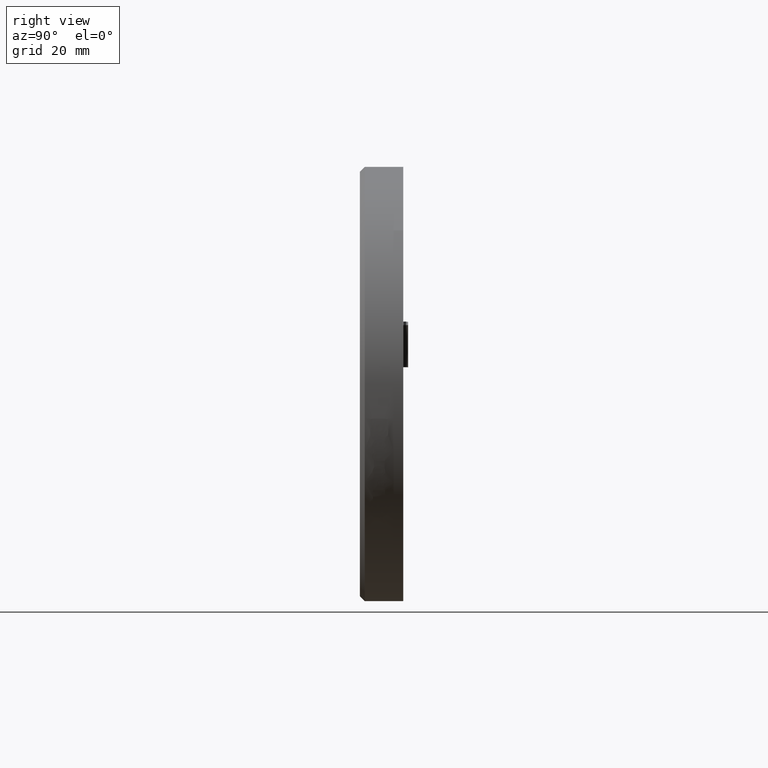
[diagram: clean part render]
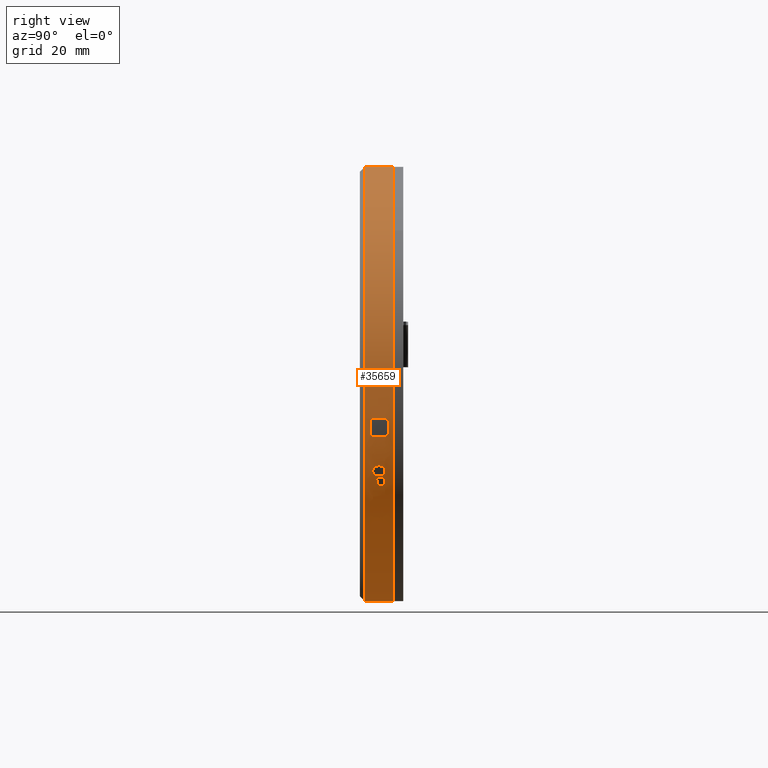
[diagram: same view with one face highlighted and labeled with its STEP entity id]
A machine part, right view. The second image highlights one B-rep face of the part: STEP entity #35659.
In plain terms, the highlighted cylindrical surface (partial cylindrical patch) has radius 45 mm, axis along (-0, -1, -0).
Its self-contained STEP definition (entity closure, byte-faithful):
#46 = CARTESIAN_POINT ( 'NONE',  ( 45.24466376941555300, 2.891542854027848300, -16.98067845313428500 ) ) ;
#82 = DIRECTION ( 'NONE',  ( 8.999925871200201800E-017, -1.000000000000000000, -3.620616613694329100E-017 ) ) ;
#114 = CARTESIAN_POINT ( 'NONE',  ( 47.97859481457570000, 4.166426802507764600, -7.280612473152278800 ) ) ;
#124 = CARTESIAN_POINT ( 'NONE',  ( 45.04963009062910100, 1.444578561732466200, -17.45225555762712900 ) ) ;
#146 = ORIENTED_EDGE ( 'NONE', *, *, #33921, .F. ) ;
#245 = ORIENTED_EDGE ( 'NONE', *, *, #28453, .F. ) ;
#308 = CARTESIAN_POINT ( 'NONE',  ( 45.21946362382568200, 3.127226523894629300, -17.04234929295762100 ) ) ;
#316 = CIRCLE ( 'NONE', #14730, 45.00000000000000000 ) ;
#322 = CARTESIAN_POINT ( 'NONE',  ( 40.97497022646570000, 3.504959444364454100, -25.01949383300754800 ) ) ;
#323 = DIRECTION ( 'NONE',  ( -0.0000000000000000000, -1.000000000000000000, -0.0000000000000000000 ) ) ;
#360 = CARTESIAN_POINT ( 'NONE',  ( 45.20884549997268900, 3.203641165967464800, -17.06829803242009500 ) ) ;
#385 = CARTESIAN_POINT ( 'NONE',  ( 44.73847869336903900, 3.854912570779164900, -18.17417715793327600 ) ) ;
#438 = CARTESIAN_POINT ( 'NONE',  ( 45.18158674383494900, 3.350707247279606900, -17.13464394355047200 ) ) ;
#486 = VERTEX_POINT ( 'NONE', #28355 ) ;
#576 = CARTESIAN_POINT ( 'NONE',  ( 45.16481479071612200, 3.421279486320137700, -17.17535673822306600 ) ) ;
#652 = CARTESIAN_POINT ( 'NONE',  ( 40.99343265655830500, 3.865424560643528000, -24.99187088339993700 ) ) ;
#656 = CARTESIAN_POINT ( 'NONE',  ( 46.46178397307032500, 2.772401304829632100, -13.61680628931980100 ) ) ;
#683 = CARTESIAN_POINT ( 'NONE',  ( 43.63702612458428800, 3.820389953031076800, -20.48804111101950900 ) ) ;
#702 = CARTESIAN_POINT ( 'NONE',  ( 47.35409286636042500, 0.7741072165377814700, -10.39644543533584900 ) ) ;
#738 = CARTESIAN_POINT ( 'NONE',  ( 46.33640225528218100, 1.806774126307851200, -14.00564740362561800 ) ) ;
#745 = CARTESIAN_POINT ( 'NONE',  ( 46.02045810070219300, 1.621238514131919700, -14.93585926630455600 ) ) ;
#746 = VERTEX_POINT ( 'NONE', #14621 ) ;
#762 = CARTESIAN_POINT ( 'NONE',  ( 45.12536344318708400, 3.547625568367561000, -17.27058635211021100 ) ) ;
#772 = B_SPLINE_CURVE_WITH_KNOTS ( 'NONE', 3,
 ( #26190, #7677, #35494, #16992, #38613, #20049, #1586, #23210, #4696, #26324 ),
 .UNSPECIFIED., .F., .F.,
 ( 4, 2, 2, 2, 4 ),
 ( 8.673617379884035500E-019, 0.0003649012277422285000, 0.0007298024554844561300, 0.001094703683226683800, 0.001459604910968911400 ),
 .UNSPECIFIED. ) ;
#789 = CARTESIAN_POINT ( 'NONE',  ( 41.59860844450953000, 2.897424443844543300, -24.06107926886966200 ) ) ;
#799 = EDGE_CURVE ( 'NONE', #2823, #28995, #27518, .T. ) ;
#861 = VERTEX_POINT ( 'NONE', #14545 ) ;
#874 = CARTESIAN_POINT ( 'NONE',  ( 46.12141701548763700, 1.690955152054619500, -14.64595344104268400 ) ) ;
#892 = CARTESIAN_POINT ( 'NONE',  ( 45.10211669892918000, 3.604996199715094600, -17.32646363812948900 ) ) ;
#923 = CARTESIAN_POINT ( 'NONE',  ( 47.08348121365426700, 2.419678028853742300, -11.47611904132404500 ) ) ;
#942 = CARTESIAN_POINT ( 'NONE',  ( 46.72671535194930900, 1.623944451322215900, -12.75243599295331400 ) ) ;
#974 = CARTESIAN_POINT ( 'NONE',  ( 45.05086448798825000, 3.700881145358766200, -17.44880496169185900 ) ) ;
#1017 = CARTESIAN_POINT ( 'NONE',  ( 45.99351669914943100, 1.617805176093289400, -15.01242910602267400 ) ) ;
#1019 = CARTESIAN_POINT ( 'NONE',  ( 45.02298645718224200, 3.739705193843981600, -17.51497122545241300 ) ) ;
#1045 = CARTESIAN_POINT ( 'NONE',  ( 41.31445652409665600, 2.327564221922119500, -24.50437696826662700 ) ) ;
#1058 = CARTESIAN_POINT ( 'NONE',  ( 45.84093336861111800, 2.260773397852901700, -15.43661116310705600 ) ) ;
#1074 = CARTESIAN_POINT ( 'NONE',  ( 42.20704349713933100, -1.376447876447878900, -23.07139482805915900 ) ) ;
#1086 = ORIENTED_EDGE ( 'NONE', *, *, #8245, .F. ) ;
#1108 = DIRECTION ( 'NONE',  ( -0.0000000000000000000, -1.000000000000000000, -0.0000000000000000000 ) ) ;
#1126 = CARTESIAN_POINT ( 'NONE',  ( 45.97368308099142100, 1.276145100658580000, -15.06890415635839800 ) ) ;
#1182 = CARTESIAN_POINT ( 'NONE',  ( 40.69500175962253500, 3.039843165294755500, -25.43305553292419300 ) ) ;
#1212 = EDGE_CURVE ( 'NONE', #5162, #19603, #25661, .T. ) ;
#1224 = CARTESIAN_POINT ( 'NONE',  ( 47.87981763422960300, 4.493507519689179800, -7.859176716390393800 ) ) ;
#1235 = CARTESIAN_POINT ( 'NONE',  ( 44.86972479264234400, 3.858513611382117700, -17.87393864531127700 ) ) ;
#1262 = CARTESIAN_POINT ( 'NONE',  ( 45.68424213249155500, 1.810532871244240800, -15.85912835432914600 ) ) ;
#1288 = CARTESIAN_POINT ( 'NONE',  ( 44.93317847511649900, 3.832186308739187600, -17.72650889606948300 ) ) ;
#1363 = VERTEX_POINT ( 'NONE', #1432 ) ;
#1372 = CARTESIAN_POINT ( 'NONE',  ( 44.80396583731187100, 3.865424560643528500, -18.02436879942107600 ) ) ;
#1432 = CARTESIAN_POINT ( 'NONE',  ( 47.23490287680378700, 1.444843921003400500, -10.88581699202396500 ) ) ;
#1438 = CARTESIAN_POINT ( 'NONE',  ( 40.09523706543141200, 2.655375396336836100, -26.28727915687680600 ) ) ;
#1440 = ORIENTED_EDGE ( 'NONE', *, *, #28029, .F. ) ;
#1467 = CIRCLE ( 'NONE', #22988, 45.00000000000000000 ) ;
#1470 = CARTESIAN_POINT ( 'NONE',  ( 46.61030246059383600, 3.753200974753982100, -13.14018907459726100 ) ) ;
#1494 = CARTESIAN_POINT ( 'NONE',  ( 39.68337895165026200, 1.609610607155188600, -26.85008453871992600 ) ) ;
#1528 = CARTESIAN_POINT ( 'NONE',  ( 39.58571531903970000, 2.355067476694814800, -26.98099015012379500 ) ) ;
#1586 = CARTESIAN_POINT ( 'NONE',  ( 40.72475061661497600, 3.786759463666250700, -25.38985207761769700 ) ) ;
#1624 = CARTESIAN_POINT ( 'NONE',  ( 40.42895887791236500, 1.702633862969135300, -25.81709626791185000 ) ) ;
#1633 = CARTESIAN_POINT ( 'NONE',  ( 47.23716371202097300, 3.997134208116713200, -10.87677694539807000 ) ) ;
#1704 = DIRECTION ( 'NONE',  ( 8.999925871200203100E-017, -1.000000000000000000, -3.620616613694324800E-017 ) ) ;
#1709 = CARTESIAN_POINT ( 'NONE',  ( 41.51353839075040500, 1.791843957146362500, -24.19518797643938900 ) ) ;
#1739 = EDGE_CURVE ( 'NONE', #28559, #19284, #21561, .T. ) ;
#1838 = CARTESIAN_POINT ( 'NONE',  ( 39.66998611661703200, 3.504959444364453600, -26.86808782099532100 ) ) ;
#1939 = CARTESIAN_POINT ( 'NONE',  ( 39.37032416660867500, 2.694986910218835500, -27.26629567014430600 ) ) ;
#1975 = AXIS2_PLACEMENT_3D ( 'NONE', #30227, #30089, #29957 ) ;
#2092 = B_SPLINE_CURVE_WITH_KNOTS ( 'NONE', 3,
 ( #25007, #3343, #31204, #12656, #34289, #15781, #37385, #18824, #385, #21970 ),
 .UNSPECIFIED., .F., .F.,
 ( 4, 2, 2, 2, 4 ),
 ( 0.0000000000000000000, 0.0004810652718423741600, 0.0009621305436847483200, 0.001443195815527122400, 0.001924261087369496600 ),
 .UNSPECIFIED. ) ;
#2095 = EDGE_CURVE ( 'NONE', #22720, #34811, #4319, .T. ) ;
#2166 = ORIENTED_EDGE ( 'NONE', *, *, #10029, .F. ) ;
#2314 = CARTESIAN_POINT ( 'NONE',  ( 40.24256658882264000, 1.749145490876111300, -26.08117398640703000 ) ) ;
#2390 = CARTESIAN_POINT ( 'NONE',  ( 46.70884989510526000, 3.479710968203816500, -12.81272629944522200 ) ) ;
#2524 = CARTESIAN_POINT ( 'NONE',  ( 39.49521422110742500, 1.291419344339865600, -27.10156828651716100 ) ) ;
#2604 = CARTESIAN_POINT ( 'NONE',  ( 46.77260303704212400, 3.865424560643528500, -12.59597256235578300 ) ) ;
#2611 = ORIENTED_EDGE ( 'NONE', *, *, #4701, .F. ) ;
#2704 = CARTESIAN_POINT ( 'NONE',  ( 41.61374330166413700, 2.574726886224944200, -24.03710236209227700 ) ) ;
#2719 = CARTESIAN_POINT ( 'NONE',  ( 46.82085288668125900, 1.659853648833483400, -12.42964326101270300 ) ) ;
#2734 = ORIENTED_EDGE ( 'NONE', *, *, #14265, .F. ) ;
#2751 = CARTESIAN_POINT ( 'NONE',  ( 3.571428571428565800, -1.376447876447878900, -45.00000000000000000 ) ) ;
#2793 = CARTESIAN_POINT ( 'NONE',  ( 46.60743955924764500, 2.004959444364508700, -13.14921131689335700 ) ) ;
#2795 = EDGE_CURVE ( 'NONE', #19118, #5162, #20996, .T. ) ;
#2814 = ORIENTED_EDGE ( 'NONE', *, *, #28980, .F. ) ;
#2823 = VERTEX_POINT ( 'NONE', #22260 ) ;
#2839 = EDGE_CURVE ( 'NONE', #19776, #486, #25533, .T. ) ;
#2847 = CARTESIAN_POINT ( 'NONE',  ( 40.42895887791236500, 2.179378049015680200, -25.81709626791185700 ) ) ;
#2855 = AXIS2_PLACEMENT_3D ( 'NONE', #27990, #9460, #31108 ) ;
#2868 = EDGE_CURVE ( 'NONE', #9408, #3594, #23872, .T. ) ;
#2869 = DIRECTION ( 'NONE',  ( 1.000000000000000000, 8.673617379884035500E-017, 0.0000000000000000000 ) ) ;
#2939 = CARTESIAN_POINT ( 'NONE',  ( 43.96296205956051800, -1.376447876447879100, -19.83743991741663100 ) ) ;
#3076 = CARTESIAN_POINT ( 'NONE',  ( 39.88953649017156500, 3.179378049015681100, -26.57056712233551800 ) ) ;
#3089 = EDGE_LOOP ( 'NONE', ( #33962, #2734, #26087, #10822, #8001, #8030, #24337, #11594, #17922, #34790, #6056, #19328, #33614, #13631 ) ) ;
#3115 = ORIENTED_EDGE ( 'NONE', *, *, #32818, .F. ) ;
#3131 = CARTESIAN_POINT ( 'NONE',  ( 39.89193119577611700, 3.127199387936014000, -26.56729390742143300 ) ) ;
#3179 = CARTESIAN_POINT ( 'NONE',  ( 39.88740037594973100, 3.074118030932870400, -26.57349705421087500 ) ) ;
#3193 = CARTESIAN_POINT ( 'NONE',  ( 47.99414547773215400, 3.879725758767838000, -7.184911856595004300 ) ) ;
#3206 = CARTESIAN_POINT ( 'NONE',  ( 44.86900349184203000, 1.294263333870310500, -17.87558869266989700 ) ) ;
#3209 = CARTESIAN_POINT ( 'NONE',  ( 39.85958713379071800, 2.981876486011766600, -26.61146561070608700 ) ) ;
#3257 = CARTESIAN_POINT ( 'NONE',  ( 47.08495414406412000, 2.586354793201674600, -11.47053147154010400 ) ) ;
#3312 = CARTESIAN_POINT ( 'NONE',  ( 39.83669149089947600, 2.944063625692813900, -26.64268389426718600 ) ) ;
#3325 = EDGE_CURVE ( 'NONE', #486, #4821, #18303, .T. ) ;
#3328 = ORIENTED_EDGE ( 'NONE', *, *, #23626, .F. ) ;
#3343 = CARTESIAN_POINT ( 'NONE',  ( 44.32919069440659100, 2.725405751731618600, -19.07367105109320000 ) ) ;
#3345 = CARTESIAN_POINT ( 'NONE',  ( 45.25251142110391100, 2.727297644509141300, -16.96134966945398400 ) ) ;
#3404 = VERTEX_POINT ( 'NONE', #20863 ) ;
#3409 = CIRCLE ( 'NONE', #7038, 45.00000000000000000 ) ;
#3421 = LINE ( 'NONE', #5463, #19821 ) ;
#3480 = CARTESIAN_POINT ( 'NONE',  ( 39.78501289724216200, 2.887808947337408700, -26.71288471852829400 ) ) ;
#3505 = CARTESIAN_POINT ( 'NONE',  ( 44.18561776003898700, 1.330540839713336500, -19.37750336219192700 ) ) ;
#3577 = CARTESIAN_POINT ( 'NONE',  ( 39.75605406297007200, 2.867867965835444500, -26.75210852026591000 ) ) ;
#3594 = VERTEX_POINT ( 'NONE', #5102 ) ;
#3611 = CARTESIAN_POINT ( 'NONE',  ( 39.69732923060189500, 2.837496053895076200, -26.83135728595815900 ) ) ;
#3715 = CARTESIAN_POINT ( 'NONE',  ( 39.63647796533516000, 2.818912932736606700, -26.91304910661512700 ) ) ;
#3749 = CARTESIAN_POINT ( 'NONE',  ( 39.66715503843548200, 2.826885950868558900, -26.87194004638785200 ) ) ;
#3769 = CARTESIAN_POINT ( 'NONE',  ( 46.60743955924764500, 2.004959444364508700, -13.14921131689335700 ) ) ;
#3783 = CARTESIAN_POINT ( 'NONE',  ( 43.73979869081421200, 3.830540839713338500, -20.28551310546631800 ) ) ;
#3794 = VERTEX_POINT ( 'NONE', #18698 ) ;
#3795 = CARTESIAN_POINT ( 'NONE',  ( 47.29286838647725900, 0.8696480514546912600, -10.65082552381538200 ) ) ;
#3831 = CARTESIAN_POINT ( 'NONE',  ( 46.27100815445375300, 1.502578448321016700, -14.20381238085710700 ) ) ;
#3863 = B_SPLINE_CURVE_WITH_KNOTS ( 'NONE', 3,
 ( #23443, #11111, #35854, #17340, #38989, #20411, #1939, #23581, #5067, #26689 ),
 .UNSPECIFIED., .F., .F.,
 ( 4, 2, 2, 2, 4 ),
 ( 0.0000000000000000000, 0.0003442922951198808500, 0.0006885845902397616900, 0.001032876885359642700, 0.001377169180479523400 ),
 .UNSPECIFIED. ) ;
#3884 = CARTESIAN_POINT ( 'NONE',  ( 41.61374330166413700, 2.574726886224944200, -24.03710236209227700 ) ) ;
#3896 = CARTESIAN_POINT ( 'NONE',  ( 47.99603101192574400, 3.677813823481139300, -7.173193013140814100 ) ) ;
#3972 = CARTESIAN_POINT ( 'NONE',  ( 46.17244716843016800, 1.870711740099919600, -14.49673633153945900 ) ) ;
#4009 = CARTESIAN_POINT ( 'NONE',  ( 47.07834200539674900, 2.255964596982804200, -11.49567607840136900 ) ) ;
#4030 = CARTESIAN_POINT ( 'NONE',  ( 46.76037518999416400, 1.621238514131919900, -12.63783565246403700 ) ) ;
#4107 = VECTOR ( 'NONE', #22676, 1000.000000000000000 ) ;
#4157 = CARTESIAN_POINT ( 'NONE',  ( 41.32205370144011200, 2.551471072271484200, -24.49265813041413200 ) ) ;
#4190 = CARTESIAN_POINT ( 'NONE',  ( 46.93359616761772200, 2.989996796102606200, -12.03008094208830200 ) ) ;
#4263 = VERTEX_POINT ( 'NONE', #26028 ) ;
#4306 = DIRECTION ( 'NONE',  ( -0.0000000000000000000, -1.000000000000000000, -0.0000000000000000000 ) ) ;
#4319 = CIRCLE ( 'NONE', #1975, 45.00000000000000000 ) ;
#4357 = ORIENTED_EDGE ( 'NONE', *, *, #799, .F. ) ;
#4367 = CARTESIAN_POINT ( 'NONE',  ( 45.65900439914089000, 2.107787633995724000, -15.92598536359596300 ) ) ;
#4384 = ORIENTED_EDGE ( 'NONE', *, *, #18915, .F. ) ;
#4398 = EDGE_CURVE ( 'NONE', #9649, #16911, #10681, .T. ) ;
#4425 = EDGE_CURVE ( 'NONE', #5202, #31344, #27240, .T. ) ;
#4435 = CARTESIAN_POINT ( 'NONE',  ( 46.47601543153093200, 3.243483514832957000, -13.57194654566648900 ) ) ;
#4475 = AXIS2_PLACEMENT_3D ( 'NONE', #13741, #13598, #13210 ) ;
#4545 = CARTESIAN_POINT ( 'NONE',  ( 39.91593561814243400, 2.489414730975645800, -26.53467495919719400 ) ) ;
#4569 = CARTESIAN_POINT ( 'NONE',  ( 46.70701707899450400, 3.854478631154223000, -12.81927577423260400 ) ) ;
#4616 = VERTEX_POINT ( 'NONE', #8197 ) ;
#4629 = CARTESIAN_POINT ( 'NONE',  ( 39.49285003758493000, 2.298513395567485200, -27.10449349136399600 ) ) ;
#4693 = ORIENTED_EDGE ( 'NONE', *, *, #38840, .F. ) ;
#4696 = CARTESIAN_POINT ( 'NONE',  ( 40.92509789421122000, 3.863778214173430500, -25.09419310519917800 ) ) ;
#4701 = EDGE_CURVE ( 'NONE', #15806, #14861, #18039, .T. ) ;
#4705 = AXIS2_PLACEMENT_3D ( 'NONE', #34378, #15867, #37483 ) ;
#4745 = CARTESIAN_POINT ( 'NONE',  ( 47.26103989171348000, 4.257897488682904600, -10.78063929436560500 ) ) ;
#4753 = VERTEX_POINT ( 'NONE', #656 ) ;
#4795 = DIRECTION ( 'NONE',  ( 8.999925871200204300E-017, -1.000000000000000000, -3.620616613694322900E-017 ) ) ;
#4818 = CARTESIAN_POINT ( 'NONE',  ( 41.32665850105610200, 1.443163439275700500, -24.48602498746581400 ) ) ;
#4821 = VERTEX_POINT ( 'NONE', #14291 ) ;
#4854 = CARTESIAN_POINT ( 'NONE',  ( 39.88799261148917500, 3.275056872399298800, -26.57268181888324300 ) ) ;
#4855 = CARTESIAN_POINT ( 'NONE',  ( 39.07709926725819800, 3.086354793201729700, -27.64683252091105100 ) ) ;
#4880 = EDGE_CURVE ( 'NONE', #34811, #9649, #24127, .T. ) ;
#5067 = CARTESIAN_POINT ( 'NONE',  ( 39.56895515269324900, 2.796287934497684100, -27.00353359848738000 ) ) ;
#5102 = CARTESIAN_POINT ( 'NONE',  ( 40.91319647081788700, 1.621238514131919000, -25.11159831926549300 ) ) ;
#5124 = VERTEX_POINT ( 'NONE', #32835 ) ;
#5162 = VERTEX_POINT ( 'NONE', #29888 ) ;
#5202 = VERTEX_POINT ( 'NONE', #27263 ) ;
#5209 = EDGE_CURVE ( 'NONE', #11015, #26054, #17620, .T. ) ;
#5220 = EDGE_CURVE ( 'NONE', #25956, #4616, #16548, .T. ) ;
#5234 = VERTEX_POINT ( 'NONE', #25652 ) ;
#5368 = EDGE_CURVE ( 'NONE', #28401, #19118, #316, .T. ) ;
#5463 = CARTESIAN_POINT ( 'NONE',  ( 41.77768855650739300, -1.376447876447879400, -23.77565347056867000 ) ) ;
#5488 = B_SPLINE_CURVE_WITH_KNOTS ( 'NONE', 3,
 ( #9286, #12406, #34016, #15525, #37134, #18570, #124, #21702, #3206, #24853 ),
 .UNSPECIFIED., .F., .F.,
 ( 4, 2, 2, 2, 4 ),
 ( 0.0000000000000000000, 0.0004782983567124793200, 0.0009565967134249592900, 0.001434895070137439300, 0.001913193426849919000 ),
 .UNSPECIFIED. ) ;
#5532 = CARTESIAN_POINT ( 'NONE',  ( 39.63647796533516000, 1.284029211806360100, -26.91304910661512700 ) ) ;
#5534 = CARTESIAN_POINT ( 'NONE',  ( 46.65382815362551800, 3.349709613635756700, -12.99674552491472200 ) ) ;
#5673 = CARTESIAN_POINT ( 'NONE',  ( 39.28540147414043600, 1.367830377374513700, -27.37741111155198200 ) ) ;
#5714 = EDGE_CURVE ( 'NONE', #6782, #20770, #16281, .T. ) ;
#5751 = EDGE_CURVE ( 'NONE', #35179, #36160, #36013, .T. ) ;
#5801 = VECTOR ( 'NONE', #30640, 1000.000000000000000 ) ;
#5881 = CARTESIAN_POINT ( 'NONE',  ( 46.89298031113020200, 1.851524632073385800, -12.17564126673499600 ) ) ;
#5920 = VECTOR ( 'NONE', #20900, 1000.000000000000000 ) ;
#5948 = B_SPLINE_CURVE_WITH_KNOTS ( 'NONE', 3,
 ( #13060, #28768, #13325, #34950, #16432, #38059, #19492, #1045, #22648, #4157 ),
 .UNSPECIFIED., .F., .F.,
 ( 4, 2, 2, 2, 4 ),
 ( 0.0000000000000000000, 0.0003301948800840141500, 0.0006603897601680282900, 0.0009905846402520420000, 0.001320779520336055700 ),
 .UNSPECIFIED. ) ;
#5962 = DIRECTION ( 'NONE',  ( 0.0000000000000000000, 1.000000000000000000, 0.0000000000000000000 ) ) ;
#6010 = ORIENTED_EDGE ( 'NONE', *, *, #19622, .F. ) ;
#6056 = ORIENTED_EDGE ( 'NONE', *, *, #9603, .F. ) ;
#6123 = ORIENTED_EDGE ( 'NONE', *, *, #32814, .F. ) ;
#6183 = VECTOR ( 'NONE', #4306, 1000.000000000000000 ) ;
#6294 = ORIENTED_EDGE ( 'NONE', *, *, #22737, .F. ) ;
#6298 = B_SPLINE_CURVE_WITH_KNOTS ( 'NONE', 3,
 ( #38546, #16933, #1528, #23142, #4629, #26257, #7747, #29396, #10833, #32462 ),
 .UNSPECIFIED., .F., .F.,
 ( 4, 2, 2, 2, 4 ),
 ( 0.0000000000000000000, 0.0001635323020503658400, 0.0003270646041007316900, 0.0004905969061510975600, 0.0006541292082014633800 ),
 .UNSPECIFIED. ) ;
#6337 = CARTESIAN_POINT ( 'NONE',  ( 47.99603101192574400, 3.677813823481139300, -7.173193013140814100 ) ) ;
#6407 = FACE_BOUND ( 'NONE', #14450, .T. ) ;
#6408 = CARTESIAN_POINT ( 'NONE',  ( 41.32205370144011200, 2.551471072271484200, -24.49265813041413200 ) ) ;
#6424 = CARTESIAN_POINT ( 'NONE',  ( 44.58222375268859800, 1.413425746857763800, -18.52350883221816200 ) ) ;
#6670 = CARTESIAN_POINT ( 'NONE',  ( 40.97497022646570000, 3.504959444364454100, -25.01949383300754800 ) ) ;
#6774 = EDGE_CURVE ( 'NONE', #31344, #11495, #24710, .T. ) ;
#6782 = VERTEX_POINT ( 'NONE', #31969 ) ;
#6889 = CARTESIAN_POINT ( 'NONE',  ( 46.61252741119451300, 1.947533951138734000, -13.13255930279055100 ) ) ;
#6920 = CARTESIAN_POINT ( 'NONE',  ( 47.25026435994572400, 1.082363058490564800, -10.82404864712132700 ) ) ;
#6952 = CARTESIAN_POINT ( 'NONE',  ( 46.21224361218705900, 1.379559159160983900, -14.37932300570919600 ) ) ;
#7015 = ORIENTED_EDGE ( 'NONE', *, *, #30303, .F. ) ;
#7038 = AXIS2_PLACEMENT_3D ( 'NONE', #15680, #37292, #18727 ) ;
#7096 = CARTESIAN_POINT ( 'NONE',  ( 46.19226289404826200, 2.102196362328165400, -14.43830888173622300 ) ) ;
#7120 = LINE ( 'NONE', #23384, #30838 ) ;
#7134 = CARTESIAN_POINT ( 'NONE',  ( 47.03598082977529100, 1.784214158172680000, -11.65524479622764200 ) ) ;
#7275 = CARTESIAN_POINT ( 'NONE',  ( 40.91319647081788700, 1.621238514131919000, -25.11159831926549300 ) ) ;
#7286 = CARTESIAN_POINT ( 'NONE',  ( 46.89832625886658900, 3.277753756806745900, -12.15657944343100100 ) ) ;
#7360 = FACE_BOUND ( 'NONE', #11047, .T. ) ;
#7404 = CARTESIAN_POINT ( 'NONE',  ( 40.86279800720226500, 1.616800444335292100, -25.18654248279079200 ) ) ;
#7474 = CARTESIAN_POINT ( 'NONE',  ( 45.65942756690660100, 2.411936188550553700, -15.92483408254667600 ) ) ;
#7489 = EDGE_CURVE ( 'NONE', #12128, #3404, #30583, .T. ) ;
#7545 = CARTESIAN_POINT ( 'NONE',  ( 40.81297454785945400, 1.628934215996812100, -25.26013505190339000 ) ) ;
#7582 = EDGE_CURVE ( 'NONE', #22983, #25956, #15347, .T. ) ;
#7655 = CARTESIAN_POINT ( 'NONE',  ( 39.71826223620345100, 2.396388298347605700, -26.80334897030077800 ) ) ;
#7677 = CARTESIAN_POINT ( 'NONE',  ( 40.41210869619993700, 3.160159399211169200, -25.84114903839741800 ) ) ;
#7686 = CARTESIAN_POINT ( 'NONE',  ( 40.71765086102824000, 1.685151626283266900, -25.40010510148847800 ) ) ;
#7691 = CARTESIAN_POINT ( 'NONE',  ( 46.77260303704212400, 3.865424560643528500, -12.59597256235578300 ) ) ;
#7747 = CARTESIAN_POINT ( 'NONE',  ( 39.41315216531992900, 2.199406442921096900, -27.20977020232287600 ) ) ;
#7807 = VECTOR ( 'NONE', #323, 1000.000000000000000 ) ;
#7820 = CARTESIAN_POINT ( 'NONE',  ( 40.67257265608429900, 1.729084149462614600, -25.46586467786893600 ) ) ;
#7830 = EDGE_CURVE ( 'NONE', #9166, #40119, #33840, .T. ) ;
#7855 = CARTESIAN_POINT ( 'NONE',  ( 47.31224918670866200, 4.431973069754611100, -10.57111269131776500 ) ) ;
#7889 = CARTESIAN_POINT ( 'NONE',  ( 40.24256658882264000, 1.749145490876111300, -26.08117398640703000 ) ) ;
#7921 = CARTESIAN_POINT ( 'NONE',  ( 41.07210357577859100, 1.292641011735771000, -24.87420704899260200 ) ) ;
#7957 = CARTESIAN_POINT ( 'NONE',  ( 39.85305254574517200, 3.405125115801360000, -26.62039075496432600 ) ) ;
#7958 = DIRECTION ( 'NONE',  ( -0.0000000000000000000, -1.000000000000000000, -0.0000000000000000000 ) ) ;
#7974 = CIRCLE ( 'NONE', #18787, 45.00000000000000000 ) ;
#7988 = AXIS2_PLACEMENT_3D ( 'NONE', #29677, #11125, #32764 ) ;
#8001 = ORIENTED_EDGE ( 'NONE', *, *, #33633, .F. ) ;
#8026 = CARTESIAN_POINT ( 'NONE',  ( 40.16896559123629400, 1.598504618383050900, -26.18446121914530900 ) ) ;
#8030 = ORIENTED_EDGE ( 'NONE', *, *, #37965, .F. ) ;
#8060 = B_SPLINE_CURVE_WITH_KNOTS ( 'NONE', 3,
 ( #34631, #37755, #19165, #738, #22323, #3831, #25494, #6952, #28576, #10048, #31683, #13138 ),
 .UNSPECIFIED., .F., .F.,
 ( 4, 2, 2, 2, 2, 4 ),
 ( 4.336808689942017700E-018, 0.0004396194494498438000, 0.0008792388988996832700, 0.001099048623624601200, 0.001318858348349518900, 0.001758477797799359200 ),
 .UNSPECIFIED. ) ;
#8197 = CARTESIAN_POINT ( 'NONE',  ( 40.24256658882264000, 2.191005955992411100, -26.08117398640703000 ) ) ;
#8233 = VERTEX_POINT ( 'NONE', #37210 ) ;
#8245 = EDGE_CURVE ( 'NONE', #17400, #28559, #30424, .T. ) ;
#8316 = CARTESIAN_POINT ( 'NONE',  ( 43.73979869081421200, 3.830540839713338500, -20.28551310546631800 ) ) ;
#8554 = CARTESIAN_POINT ( 'NONE',  ( 40.94016121569711700, 3.504959444364453600, -25.07153246707997200 ) ) ;
#8584 = VECTOR ( 'NONE', #39004, 1000.000000000000000 ) ;
#8586 = CARTESIAN_POINT ( 'NONE',  ( 43.96296205956051800, 2.202633862969140700, -19.83743991741663100 ) ) ;
#8623 = CARTESIAN_POINT ( 'NONE',  ( 46.62646945737517300, 3.132866421108650500, -13.08676638094628900 ) ) ;
#8642 = VECTOR ( 'NONE', #16271, 1000.000000000000000 ) ;
#8765 = CARTESIAN_POINT ( 'NONE',  ( 39.16291280530663200, 1.494457993797006800, -27.53630118663696500 ) ) ;
#8781 = ORIENTED_EDGE ( 'NONE', *, *, #15798, .F. ) ;
#8784 = EDGE_CURVE ( 'NONE', #1363, #30389, #18152, .T. ) ;
#8961 = CARTESIAN_POINT ( 'NONE',  ( 46.93209104726377500, 2.143747024996852900, -12.03550912229766800 ) ) ;
#9021 = B_SPLINE_CURVE_WITH_KNOTS ( 'NONE', 3,
 ( #32512, #23190, #38734, #20174, #1709, #23337, #4818, #26442, #7921, #29571 ),
 .UNSPECIFIED., .F., .F.,
 ( 4, 2, 2, 2, 4 ),
 ( 0.0000000000000000000, 0.0004811180740959576100, 0.0009622361481919152200, 0.001443354222287872800, 0.001924472296383830400 ),
 .UNSPECIFIED. ) ;
#9166 = VERTEX_POINT ( 'NONE', #35176 ) ;
#9271 = B_SPLINE_CURVE_WITH_KNOTS ( 'NONE', 3,
 ( #9864, #28397, #12959, #34574, #16070, #37695, #19114, #683, #22274, #3783 ),
 .UNSPECIFIED., .F., .F.,
 ( 4, 2, 2, 2, 4 ),
 ( 0.0000000000000000000, 0.0003348098627868715000, 0.0006696197255737430000, 0.001004429588360614400, 0.001339239451147486000 ),
 .UNSPECIFIED. ) ;
#9286 = CARTESIAN_POINT ( 'NONE',  ( 45.25517909689692400, 2.563098979248214600, -16.95479112612466800 ) ) ;
#9294 = EDGE_CURVE ( 'NONE', #27342, #15291, #15084, .T. ) ;
#9300 = CARTESIAN_POINT ( 'NONE',  ( 40.59111209762347300, 1.835507161346801900, -25.58413937974644600 ) ) ;
#9344 = CIRCLE ( 'NONE', #4705, 45.00000000000000000 ) ;
#9354 = EDGE_CURVE ( 'NONE', #14749, #30033, #14986, .T. ) ;
#9377 = CARTESIAN_POINT ( 'NONE',  ( 44.73917391741203200, 1.294224665836844600, -18.17258676375191900 ) ) ;
#9408 = VERTEX_POINT ( 'NONE', #2847 ) ;
#9415 = CARTESIAN_POINT ( 'NONE',  ( 39.41393836956075300, 1.762700764759021600, -27.20873463274379800 ) ) ;
#9441 = CARTESIAN_POINT ( 'NONE',  ( 40.55406449518493200, 1.898425541417362700, -25.63762985118766100 ) ) ;
#9460 = DIRECTION ( 'NONE',  ( 8.999925871200199400E-017, -1.000000000000000000, -3.620616613694329700E-017 ) ) ;
#9463 = LINE ( 'NONE', #2939, #17673 ) ;
#9495 = CARTESIAN_POINT ( 'NONE',  ( 41.31750060591949800, 2.765037773052105000, -24.49968058930591400 ) ) ;
#9503 = DIRECTION ( 'NONE',  ( -8.999925871200196900E-017, 1.000000000000000000, 3.620616613694337100E-017 ) ) ;
#9513 = CARTESIAN_POINT ( 'NONE',  ( 44.49808298975488400, 1.543617814056706500, -18.70864282126121800 ) ) ;
#9543 = LINE ( 'NONE', #35867, #8584 ) ;
#9572 = CARTESIAN_POINT ( 'NONE',  ( 45.65942756690660100, 2.411936188550553700, -15.92483408254667600 ) ) ;
#9574 = CARTESIAN_POINT ( 'NONE',  ( 40.42895887791236500, 2.179378049015680200, -25.81709626791185700 ) ) ;
#9595 = CARTESIAN_POINT ( 'NONE',  ( 46.80601695487406000, 2.772401304829634300, -12.48079994687998500 ) ) ;
#9603 = EDGE_CURVE ( 'NONE', #22131, #4753, #10818, .T. ) ;
#9649 = VERTEX_POINT ( 'NONE', #34861 ) ;
#9671 = CARTESIAN_POINT ( 'NONE',  ( 46.76342631481922800, 1.284029211806361400, -12.62740396656952100 ) ) ;
#9684 = DIRECTION ( 'NONE',  ( -0.0000000000000000000, -1.000000000000000000, -0.0000000000000000000 ) ) ;
#9690 = VERTEX_POINT ( 'NONE', #19410 ) ;
#9706 = CARTESIAN_POINT ( 'NONE',  ( 40.45702718511663700, 2.104259146946866100, -25.77702481786580800 ) ) ;
#9738 = DIRECTION ( 'NONE',  ( 0.0000000000000000000, 1.000000000000000000, 0.0000000000000000000 ) ) ;
#9815 = B_SPLINE_CURVE_WITH_KNOTS ( 'NONE', 3,
 ( #34594, #31518, #702, #22294, #3795, #25459, #6920, #28543, #10012, #31647 ),
 .UNSPECIFIED., .F., .F.,
 ( 4, 2, 2, 2, 4 ),
 ( 0.0000000000000000000, 0.0002734797383373103200, 0.0005469594766746206400, 0.0008204392150119309600, 0.001093918953349241300 ),
 .UNSPECIFIED. ) ;
#9864 = CARTESIAN_POINT ( 'NONE',  ( 43.34950992236915100, 3.016587351341239100, -21.04053811189136200 ) ) ;
#9879 = VECTOR ( 'NONE', #7958, 1000.000000000000000 ) ;
#9909 = CARTESIAN_POINT ( 'NONE',  ( 46.64578011346790700, 1.324599090548993700, -13.02346656336957600 ) ) ;
#9922 = VERTEX_POINT ( 'NONE', #2704 ) ;
#9937 = CARTESIAN_POINT ( 'NONE',  ( 40.09995672507431400, 1.891713729973976100, -26.28103003675453700 ) ) ;
#9941 = CARTESIAN_POINT ( 'NONE',  ( 3.571428571428571200, -1.376447876447878900, 45.00000000000000000 ) ) ;
#9969 = CARTESIAN_POINT ( 'NONE',  ( 41.16926884098882100, 3.825964856305948300, -24.72700409917222000 ) ) ;
#10012 = CARTESIAN_POINT ( 'NONE',  ( 47.23490287680380100, 1.351937184165185300, -10.88581699202397200 ) ) ;
#10029 = EDGE_CURVE ( 'NONE', #27621, #12128, #28092, .T. ) ;
#10031 = EDGE_CURVE ( 'NONE', #3404, #9690, #3409, .T. ) ;
#10048 = CARTESIAN_POINT ( 'NONE',  ( 46.12137405855001800, 1.289554890148509000, -14.64658279238749600 ) ) ;
#10111 = CARTESIAN_POINT ( 'NONE',  ( 40.48726216627540700, 2.032428844049229500, -25.73372600796863500 ) ) ;
#10178 = CARTESIAN_POINT ( 'NONE',  ( 46.19411829049013100, 2.260773397852898100, -14.43282096863267600 ) ) ;
#10186 = CARTESIAN_POINT ( 'NONE',  ( 40.77673049608254300, 1.307718577217134500, -25.31393696574030400 ) ) ;
#10219 = CARTESIAN_POINT ( 'NONE',  ( 46.94063140699425000, 1.434920099182774900, -12.00568569383628600 ) ) ;
#10262 = AXIS2_PLACEMENT_3D ( 'NONE', #23312, #4795, #26414 ) ;
#10384 = CARTESIAN_POINT ( 'NONE',  ( 46.83084869491294500, 3.475778826837761800, -12.39477289986132800 ) ) ;
#10406 = EDGE_CURVE ( 'NONE', #14877, #37944, #13452, .T. ) ;
#10435 = CARTESIAN_POINT ( 'NONE',  ( 45.92318536840914300, 1.283354917322620900, -15.21019703958560900 ) ) ;
#10513 = CIRCLE ( 'NONE', #10262, 45.00000000000000000 ) ;
#10517 = VERTEX_POINT ( 'NONE', #2793 ) ;
#10681 = CIRCLE ( 'NONE', #16725, 45.00000000000000000 ) ;
#10740 = VECTOR ( 'NONE', #37116, 1000.000000000000000 ) ;
#10818 = LINE ( 'NONE', #16091, #18041 ) ;
#10822 = ORIENTED_EDGE ( 'NONE', *, *, #25095, .F. ) ;
#10833 = CARTESIAN_POINT ( 'NONE',  ( 39.37270514941713600, 2.048663954096707800, -27.26295280020793400 ) ) ;
#10869 = EDGE_CURVE ( 'NONE', #30521, #27587, #9543, .T. ) ;
#10938 = CARTESIAN_POINT ( 'NONE',  ( 47.37491766401996800, 4.493507519689180700, -10.30839301689946000 ) ) ;
#11015 = VERTEX_POINT ( 'NONE', #2604 ) ;
#11041 = CARTESIAN_POINT ( 'NONE',  ( 39.78116901184157000, 3.480775923722157800, -26.71809915609813800 ) ) ;
#11043 = CARTESIAN_POINT ( 'NONE',  ( 47.99603101192574400, -1.376447876447878900, -7.173193013140814100 ) ) ;
#11047 = EDGE_LOOP ( 'NONE', ( #37160, #37235, #1440, #18106, #28184, #3328, #4384 ) ) ;
#11051 = VECTOR ( 'NONE', #17567, 1000.000000000000000 ) ;
#11101 = CARTESIAN_POINT ( 'NONE',  ( 40.08070299541169100, 1.473284863578556500, -26.30738691484602400 ) ) ;
#11111 = CARTESIAN_POINT ( 'NONE',  ( 39.03544244638545300, 2.144476328719170600, -27.70024765009989700 ) ) ;
#11125 = DIRECTION ( 'NONE',  ( -0.0000000000000000000, -1.000000000000000000, -0.0000000000000000000 ) ) ;
#11141 = CARTESIAN_POINT ( 'NONE',  ( 39.60324433489582000, 3.492526144273358800, -26.95757663572825900 ) ) ;
#11291 = ORIENTED_EDGE ( 'NONE', *, *, #28244, .F. ) ;
#11343 = ORIENTED_EDGE ( 'NONE', *, *, #10031, .F. ) ;
#11420 = B_SPLINE_CURVE_WITH_KNOTS ( 'NONE', 3,
 ( #17146, #38202, #4854, #26470, #7957, #29598, #11041, #32671, #14167, #35789 ),
 .UNSPECIFIED., .F., .F.,
 ( 4, 2, 2, 2, 4 ),
 ( 0.0000000000000000000, 0.0001419164889355262500, 0.0002838329778710525000, 0.0004257494668065787500, 0.0005676659557421050000 ),
 .UNSPECIFIED. ) ;
#11479 = VERTEX_POINT ( 'NONE', #15600 ) ;
#11495 = VERTEX_POINT ( 'NONE', #18649 ) ;
#11554 = VERTEX_POINT ( 'NONE', #34376 ) ;
#11594 = ORIENTED_EDGE ( 'NONE', *, *, #37012, .F. ) ;
#11607 = EDGE_CURVE ( 'NONE', #21212, #2823, #12486, .T. ) ;
#11649 = CARTESIAN_POINT ( 'NONE',  ( 40.81072437808908400, 3.415616936789726200, -25.26334683707906900 ) ) ;
#11854 = CARTESIAN_POINT ( 'NONE',  ( 39.09231508145506200, 1.629591455222256100, -27.62729212326218700 ) ) ;
#12052 = CARTESIAN_POINT ( 'NONE',  ( 46.94727266985918800, 2.465659925172388100, -11.98065793972167000 ) ) ;
#12128 = VERTEX_POINT ( 'NONE', #13640 ) ;
#12286 = CARTESIAN_POINT ( 'NONE',  ( 3.571428571428565800, 3.830540839713334000, 0.0000000000000000000 ) ) ;
#12391 = LINE ( 'NONE', #22721, #19600 ) ;
#12406 = CARTESIAN_POINT ( 'NONE',  ( 45.25245509505177900, 2.401620649773559700, -16.96148814837049600 ) ) ;
#12486 = B_SPLINE_CURVE_WITH_KNOTS ( 'NONE', 3,
 ( #745, #13144, #19311, #874, #22466, #3972, #25635, #7096, #28727, #10178 ),
 .UNSPECIFIED., .F., .F.,
 ( 4, 2, 2, 2, 4 ),
 ( 0.0000000000000000000, 0.0002365883911204740700, 0.0004731767822409481300, 0.0007097651733614222300, 0.0009463535644818962700 ),
 .UNSPECIFIED. ) ;
#12489 = CARTESIAN_POINT ( 'NONE',  ( 44.80396583731187100, 1.284029211806361000, -18.02436879942107600 ) ) ;
#12519 = CARTESIAN_POINT ( 'NONE',  ( 39.50385630192398900, 1.654304654101634600, -27.08991323682956700 ) ) ;
#12539 = CIRCLE ( 'NONE', #15735, 45.00000000000000000 ) ;
#12593 = CARTESIAN_POINT ( 'NONE',  ( 41.28335879310569100, 3.080446956220940000, -24.55224135574269800 ) ) ;
#12597 = CARTESIAN_POINT ( 'NONE',  ( 3.571428571428565800, 3.830540839713334000, 0.0000000000000000000 ) ) ;
#12610 = CARTESIAN_POINT ( 'NONE',  ( 44.40707188476752500, 1.782185713768981800, -18.90664359540440000 ) ) ;
#12656 = CARTESIAN_POINT ( 'NONE',  ( 44.37785643262085200, 3.192543848380141800, -18.96938456437013400 ) ) ;
#12764 = CARTESIAN_POINT ( 'NONE',  ( 46.76037518999416400, 1.621238514131919900, -12.63783565246403700 ) ) ;
#12776 = CARTESIAN_POINT ( 'NONE',  ( 46.80601695487406000, -1.376447876447878900, -12.48079994687998500 ) ) ;
#12908 = VECTOR ( 'NONE', #28474, 1000.000000000000000 ) ;
#12955 = ORIENTED_EDGE ( 'NONE', *, *, #1739, .F. ) ;
#12959 = CARTESIAN_POINT ( 'NONE',  ( 43.35357373012875100, 3.241026853987139400, -21.03287914767976100 ) ) ;
#13009 = CARTESIAN_POINT ( 'NONE',  ( 46.55984883093025000, 1.439373934518704700, -13.30431939428360800 ) ) ;
#13060 = CARTESIAN_POINT ( 'NONE',  ( 40.91319647081788700, 1.621238514131919000, -25.11159831926549300 ) ) ;
#13063 = CARTESIAN_POINT ( 'NONE',  ( 41.33005358397925000, 3.692740934024956200, -24.48040885679726800 ) ) ;
#13123 = CARTESIAN_POINT ( 'NONE',  ( 46.19411829049013100, -1.376447876447878700, -14.43282096863267600 ) ) ;
#13138 = CARTESIAN_POINT ( 'NONE',  ( 46.02405052905489700, 1.284029211806361200, -14.92564534359780600 ) ) ;
#13144 = CARTESIAN_POINT ( 'NONE',  ( 46.04693122808971100, 1.621238514131919400, -14.86062030307064300 ) ) ;
#13210 = DIRECTION ( 'NONE',  ( 1.000000000000000000, 8.673617379884035500E-017, 2.664535259100375700E-015 ) ) ;
#13211 = CARTESIAN_POINT ( 'NONE',  ( 46.61923867764110000, 1.892804077379725200, -13.11057022060818300 ) ) ;
#13250 = EDGE_LOOP ( 'NONE', ( #27823, #35603, #33805, #32787, #146, #18996, #29670, #30828 ) ) ;
#13298 = CARTESIAN_POINT ( 'NONE',  ( 40.49414069888035800, 1.555468112955749000, -25.72404006527667900 ) ) ;
#13301 = CARTESIAN_POINT ( 'NONE',  ( 45.85096949570422000, 1.940771805160228300, -15.40910855641423400 ) ) ;
#13325 = CARTESIAN_POINT ( 'NONE',  ( 41.03534121939420500, 1.650389406754449800, -24.92921056820066600 ) ) ;
#13329 = CARTESIAN_POINT ( 'NONE',  ( 46.81052509029640200, 1.290797664298130700, -12.46630274501105100 ) ) ;
#13382 = EDGE_CURVE ( 'NONE', #3794, #36160, #13885, .T. ) ;
#13425 = ORIENTED_EDGE ( 'NONE', *, *, #38466, .F. ) ;
#13452 = B_SPLINE_CURVE_WITH_KNOTS ( 'NONE', 3,
 ( #26880, #39453, #33225, #2390, #24050, #5534, #27141, #8623 ),
 .UNSPECIFIED., .F., .F.,
 ( 4, 2, 2, 4 ),
 ( 0.0000000000000000000, 0.0001716901782114324600, 0.0003433803564228649200, 0.0006867607128457377500 ),
 .UNSPECIFIED. ) ;
#13487 = CARTESIAN_POINT ( 'NONE',  ( 46.77260303704212400, 3.516587351341240000, -12.59597256235578300 ) ) ;
#13538 = CARTESIAN_POINT ( 'NONE',  ( 45.82344418741937600, 1.369452275312345300, -15.48455756457207900 ) ) ;
#13541 = CARTESIAN_POINT ( 'NONE',  ( 44.33733128913074500, 2.238958217542789800, -19.05631920237655300 ) ) ;
#13598 = DIRECTION ( 'NONE',  ( -8.999925871200201800E-017, 1.000000000000000000, 3.620616613694325400E-017 ) ) ;
#13631 = ORIENTED_EDGE ( 'NONE', *, *, #5209, .F. ) ;
#13640 = CARTESIAN_POINT ( 'NONE',  ( 42.04841606049532000, 3.830540839713339400, -23.33498304619483900 ) ) ;
#13697 = CARTESIAN_POINT ( 'NONE',  ( 45.25517909689692400, 2.563098979248214600, -16.95479112612466800 ) ) ;
#13719 = CARTESIAN_POINT ( 'NONE',  ( 40.21858451238347200, 3.063142547419404100, -26.11486494731685300 ) ) ;
#13734 = CARTESIAN_POINT ( 'NONE',  ( 42.85923026367022000, 1.330540839713336500, -21.94239362948109600 ) ) ;
#13741 = CARTESIAN_POINT ( 'NONE',  ( 3.571428571428565800, 2.202633862969136700, 0.0000000000000000000 ) ) ;
#13749 = CARTESIAN_POINT ( 'NONE',  ( 46.46508557383796000, 3.132866421108650500, -13.60640249881117300 ) ) ;
#13781 = VERTEX_POINT ( 'NONE', #31604 ) ;
#13885 = LINE ( 'NONE', #9941, #12908 ) ;
#13888 = ORIENTED_EDGE ( 'NONE', *, *, #15537, .F. ) ;
#13905 = LINE ( 'NONE', #21708, #37596 ) ;
#14003 = VERTEX_POINT ( 'NONE', #14414 ) ;
#14081 = ORIENTED_EDGE ( 'NONE', *, *, #29783, .F. ) ;
#14167 = CARTESIAN_POINT ( 'NONE',  ( 39.69834068971092500, 3.504959444364453200, -26.82999209958340400 ) ) ;
#14184 = ORIENTED_EDGE ( 'NONE', *, *, #26658, .F. ) ;
#14231 = EDGE_CURVE ( 'NONE', #4753, #27471, #39848, .T. ) ;
#14239 = CARTESIAN_POINT ( 'NONE',  ( 39.92610989883436200, 1.340674930002147200, -26.52065423754710900 ) ) ;
#14265 = EDGE_CURVE ( 'NONE', #37944, #5234, #9344, .T. ) ;
#14270 = CARTESIAN_POINT ( 'NONE',  ( 39.51307588317320100, 3.417282084722755600, -27.07765744340872200 ) ) ;
#14291 = CARTESIAN_POINT ( 'NONE',  ( 43.34950992236915100, 3.016587351341239100, -21.04053811189136200 ) ) ;
#14414 = CARTESIAN_POINT ( 'NONE',  ( 43.96296205956051800, 1.330540839713331800, -19.83743991741663100 ) ) ;
#14450 = EDGE_LOOP ( 'NONE', ( #28130, #4693, #38182, #15926, #30414, #14184, #25884, #37390, #33627, #245, #13888, #2611, #33970, #14081 ) ) ;
#14520 = CARTESIAN_POINT ( 'NONE',  ( 46.80601695487406000, 2.423564095527288100, -12.48079994687998700 ) ) ;
#14545 = CARTESIAN_POINT ( 'NONE',  ( 47.39600334793163900, 4.493507519689179800, -10.21795701981031700 ) ) ;
#14616 = FACE_BOUND ( 'NONE', #25871, .T. ) ;
#14621 = CARTESIAN_POINT ( 'NONE',  ( 40.98111415642478100, 1.284029211806360500, -25.01030636421167200 ) ) ;
#14730 = AXIS2_PLACEMENT_3D ( 'NONE', #18245, #18167, #18112 ) ;
#14749 = VERTEX_POINT ( 'NONE', #6670 ) ;
#14786 = CARTESIAN_POINT ( 'NONE',  ( 40.74337904861806000, 3.272295786830393000, -25.36231012498242200 ) ) ;
#14794 = EDGE_LOOP ( 'NONE', ( #38400, #3115, #7015, #6123 ) ) ;
#14816 = DIRECTION ( 'NONE',  ( -2.487473739912555300E-016, 1.000000000000000000, -3.584010022393342600E-016 ) ) ;
#14861 = VERTEX_POINT ( 'NONE', #35014 ) ;
#14877 = VERTEX_POINT ( 'NONE', #16494 ) ;
#14986 = B_SPLINE_CURVE_WITH_KNOTS ( 'NONE', 3,
 ( #23843, #8554, #27065, #30193, #11649, #33282, #14786, #36393, #17857, #39506 ),
 .UNSPECIFIED., .F., .F.,
 ( 4, 2, 2, 2, 4 ),
 ( 0.0000000000000000000, 0.0001857318360081124200, 0.0003714636720162248300, 0.0005571955080243372500, 0.0007429273440324496600 ),
 .UNSPECIFIED. ) ;
#14990 = CARTESIAN_POINT ( 'NONE',  ( 39.03435138351122900, 1.909206375863352600, -27.70164451374528600 ) ) ;
#15084 = B_SPLINE_CURVE_WITH_KNOTS ( 'NONE', 3,
 ( #7889, #38839, #8026, #11101, #32739, #14239, #35847, #17331, #38976, #20404 ),
 .UNSPECIFIED., .F., .F.,
 ( 4, 2, 2, 2, 4 ),
 ( 1.951563910473908000E-018, 0.0002937856953688788700, 0.0005875713907377557900, 0.0008813570861066327100, 0.001175142781475509600 ),
 .UNSPECIFIED. ) ;
#15291 = VERTEX_POINT ( 'NONE', #30850 ) ;
#15347 = B_SPLINE_CURVE_WITH_KNOTS ( 'NONE', 3,
 ( #21694, #36993, #27949, #9415, #31073, #12519, #34146, #15636, #37259, #18686 ),
 .UNSPECIFIED., .F., .F.,
 ( 4, 2, 2, 2, 4 ),
 ( 0.0000000000000000000, 0.0001816007333390448700, 0.0003632014666780897300, 0.0005448022000171346300, 0.0007264029333561794700 ),
 .UNSPECIFIED. ) ;
#15414 = DIRECTION ( 'NONE',  ( -1.000000000000000000, -8.673617379884035500E-017, 0.0000000000000000000 ) ) ;
#15516 = CARTESIAN_POINT ( 'NONE',  ( 47.91482312575605100, 4.474922387506079100, -7.659741251554134300 ) ) ;
#15525 = CARTESIAN_POINT ( 'NONE',  ( 45.21022816375663900, 1.936398431889978500, -17.06494709095389300 ) ) ;
#15537 = EDGE_CURVE ( 'NONE', #14861, #21117, #11420, .T. ) ;
#15585 = FACE_BOUND ( 'NONE', #14794, .T. ) ;
#15600 = CARTESIAN_POINT ( 'NONE',  ( 46.60743955924763800, 2.423564095527289500, -13.14921131689335400 ) ) ;
#15636 = CARTESIAN_POINT ( 'NONE',  ( 39.61080061537958800, 1.613572920005158700, -26.94749028990332500 ) ) ;
#15651 = DIRECTION ( 'NONE',  ( 0.0000000000000000000, 1.000000000000000000, 0.0000000000000000000 ) ) ;
#15680 = CARTESIAN_POINT ( 'NONE',  ( 3.571428571428565800, 1.330540839713331800, 0.0000000000000000000 ) ) ;
#15713 = CARTESIAN_POINT ( 'NONE',  ( 41.19330408283780500, 3.360202316105647600, -24.69013105995019300 ) ) ;
#15724 = DIRECTION ( 'NONE',  ( -1.000000000000000000, -8.673617379884035500E-017, 0.0000000000000000000 ) ) ;
#15735 = AXIS2_PLACEMENT_3D ( 'NONE', #33315, #14816, #36421 ) ;
#15781 = CARTESIAN_POINT ( 'NONE',  ( 44.49378696234989400, 3.596403863066595500, -18.71820367098168000 ) ) ;
#15798 = EDGE_CURVE ( 'NONE', #40119, #22681, #35406, .T. ) ;
#15806 = VERTEX_POINT ( 'NONE', #21686 ) ;
#15867 = DIRECTION ( 'NONE',  ( -8.999925871200201800E-017, 1.000000000000000000, 3.620616613694327800E-017 ) ) ;
#15868 = VERTEX_POINT ( 'NONE', #9671 ) ;
#15876 = VERTEX_POINT ( 'NONE', #12764 ) ;
#15924 = CARTESIAN_POINT ( 'NONE',  ( 44.80396583731187100, 1.284029211806361000, -18.02436879942107600 ) ) ;
#15926 = ORIENTED_EDGE ( 'NONE', *, *, #7582, .F. ) ;
#15944 = VERTEX_POINT ( 'NONE', #34792 ) ;
#15948 = CARTESIAN_POINT ( 'NONE',  ( 3.571428571428565800, 3.481703630410990100, 0.0000000000000000000 ) ) ;
#16070 = CARTESIAN_POINT ( 'NONE',  ( 43.41173964289171000, 3.559360233424927200, -20.92263130687851100 ) ) ;
#16091 = CARTESIAN_POINT ( 'NONE',  ( 46.46178397307032500, -1.376447876447878900, -13.61680628931979900 ) ) ;
#16115 = CARTESIAN_POINT ( 'NONE',  ( 46.49029670566083200, 1.651726793896386400, -13.52686077503045300 ) ) ;
#16157 = CARTESIAN_POINT ( 'NONE',  ( 47.87981763422960300, 0.7650821860656270600, -7.859176716390393800 ) ) ;
#16167 = CARTESIAN_POINT ( 'NONE',  ( 41.43232698551545200, 3.540993549839407200, -24.32190223328213800 ) ) ;
#16271 = DIRECTION ( 'NONE',  ( 0.0000000000000000000, 1.000000000000000000, 0.0000000000000000000 ) ) ;
#16281 = B_SPLINE_CURVE_WITH_KNOTS ( 'NONE', 3,
 ( #1372, #1235, #1288, #1019, #974, #892, #762, #576, #438, #360, #308, #46, #3345, #37182 ),
 .UNSPECIFIED., .F., .F.,
 ( 4, 2, 2, 2, 2, 2, 4 ),
 ( 0.0000000000000000000, 0.0004872153267043569700, 0.0007308229900565319900, 0.0009744306534087070000, 0.001218038316760881900, 0.001461645980113057000, 0.001948861306817403600 ),
 .UNSPECIFIED. ) ;
#16319 = CARTESIAN_POINT ( 'NONE',  ( 46.64942958916299900, 1.746546864445782400, -13.01108043908310900 ) ) ;
#16400 = CARTESIAN_POINT ( 'NONE',  ( 45.89171467771729600, 1.729404776828727500, -15.29691273606770500 ) ) ;
#16432 = CARTESIAN_POINT ( 'NONE',  ( 41.19514322089813900, 1.822174881065266300, -24.68724575725271800 ) ) ;
#16464 = CARTESIAN_POINT ( 'NONE',  ( 46.94833460967036800, 2.574726886224944600, -11.97681186917209200 ) ) ;
#16494 = CARTESIAN_POINT ( 'NONE',  ( 46.77260303704212400, 3.516587351341240000, -12.59597256235578300 ) ) ;
#16497 = CARTESIAN_POINT ( 'NONE',  ( 3.571428571428565800, -1.376447876447878900, 0.0000000000000000000 ) ) ;
#16501 = CIRCLE ( 'NONE', #34945, 45.00000000000000000 ) ;
#16533 = CARTESIAN_POINT ( 'NONE',  ( 47.87981763422960300, 0.7650821860656270600, -7.859176716390393800 ) ) ;
#16537 = CARTESIAN_POINT ( 'NONE',  ( 3.571428571428565800, 0.7650821860656223900, 0.0000000000000000000 ) ) ;
#16548 = B_SPLINE_CURVE_WITH_KNOTS ( 'NONE', 3,
 ( #25977, #26155, #25850, #9937, #25761, #25723 ),
 .UNSPECIFIED., .F., .F.,
 ( 4, 2, 4 ),
 ( 0.0000000000000000000, 0.0005789284124143870800, 0.001157856824828774200 ),
 .UNSPECIFIED. ) ;
#16571 = CARTESIAN_POINT ( 'NONE',  ( 3.571428571428565800, 3.830540839713334000, 0.0000000000000000000 ) ) ;
#16646 = CARTESIAN_POINT ( 'NONE',  ( 45.75669304376516100, 1.493890835286453700, -15.66544033947641200 ) ) ;
#16650 = CARTESIAN_POINT ( 'NONE',  ( 44.32493656374769100, 2.563098979248214600, -19.08275625584472800 ) ) ;
#16701 = CARTESIAN_POINT ( 'NONE',  ( 39.39312477444850900, 3.086354793201730600, -27.23611721847567300 ) ) ;
#16709 = CARTESIAN_POINT ( 'NONE',  ( 47.89613241094689800, 0.7650821860656269500, -7.767197428947269200 ) ) ;
#16725 = AXIS2_PLACEMENT_3D ( 'NONE', #17623, #17538, #17488 ) ;
#16796 = CARTESIAN_POINT ( 'NONE',  ( 46.19411829049013100, 3.830540839713338500, -14.43282096863267800 ) ) ;
#16816 = CARTESIAN_POINT ( 'NONE',  ( 47.91222090257814900, 0.7744201367580634300, -7.674768649822634200 ) ) ;
#16847 = CARTESIAN_POINT ( 'NONE',  ( 47.94226440176177600, 0.8259753792264322700, -7.499124355553339800 ) ) ;
#16867 = CARTESIAN_POINT ( 'NONE',  ( 46.49042294640366900, 3.347834796192434400, -13.52642264484039100 ) ) ;
#16911 = VERTEX_POINT ( 'NONE', #18853 ) ;
#16933 = CARTESIAN_POINT ( 'NONE',  ( 39.61757333317017800, 2.367482888948135900, -26.93841801829744000 ) ) ;
#16982 = CARTESIAN_POINT ( 'NONE',  ( 47.95633349835063800, 0.8699599927981753700, -7.415165566021318700 ) ) ;
#16992 = CARTESIAN_POINT ( 'NONE',  ( 40.50284568768779500, 3.490002955281869700, -25.71135898737791700 ) ) ;
#17084 = CARTESIAN_POINT ( 'NONE',  ( 47.97816112883079900, 0.9986183893488812500, -7.283307580953340300 ) ) ;
#17094 = CARTESIAN_POINT ( 'NONE',  ( 3.571428571428565800, -0.3764478764478641500, -45.00000000000000000 ) ) ;
#17120 = CARTESIAN_POINT ( 'NONE',  ( 47.98576661017703100, 1.083188748726642500, -7.236526879065757500 ) ) ;
#17146 = CARTESIAN_POINT ( 'NONE',  ( 39.88953649017156500, 3.179378049015681100, -26.57056712233551800 ) ) ;
#17208 = CARTESIAN_POINT ( 'NONE',  ( 47.99603101192574400, 1.444843921003401000, -7.173193013140814100 ) ) ;
#17331 = CARTESIAN_POINT ( 'NONE',  ( 39.75414514662756500, 1.282387595910617000, -26.75482191143464300 ) ) ;
#17340 = CARTESIAN_POINT ( 'NONE',  ( 39.13165105522391900, 2.452128087187587000, -27.57670182256307000 ) ) ;
#17363 = CARTESIAN_POINT ( 'NONE',  ( 39.41290385117953600, 3.193705464143142200, -27.21010322859040900 ) ) ;
#17366 = B_SPLINE_CURVE_WITH_KNOTS ( 'NONE', 3,
 ( #5532, #17916, #2524, #24171, #5673, #27280, #8765, #30406, #11854, #33485, #14990, #36590 ),
 .UNSPECIFIED., .F., .F.,
 ( 4, 2, 2, 2, 2, 4 ),
 ( 0.0000000000000000000, 0.0003520605674169955100, 0.0007041211348339910200, 0.0008801514185424921400, 0.001056181702250993000, 0.001408242269667997400 ),
 .UNSPECIFIED. ) ;
#17378 = AXIS2_PLACEMENT_3D ( 'NONE', #16537, #38154, #19613 ) ;
#17400 = VERTEX_POINT ( 'NONE', #33871 ) ;
#17412 = CARTESIAN_POINT ( 'NONE',  ( 47.99603101192573700, 1.351785863832208400, -7.173193013140815900 ) ) ;
#17431 = AXIS2_PLACEMENT_3D ( 'NONE', #20168, #1704, #23331 ) ;
#17466 = ORIENTED_EDGE ( 'NONE', *, *, #20943, .F. ) ;
#17488 = DIRECTION ( 'NONE',  ( 1.000000000000000000, 8.673617379884035500E-017, 0.0000000000000000000 ) ) ;
#17538 = DIRECTION ( 'NONE',  ( -8.999925871200199400E-017, 1.000000000000000000, 3.620616613694327800E-017 ) ) ;
#17544 = AXIS2_PLACEMENT_3D ( 'NONE', #39920, #21368, #2869 ) ;
#17567 = DIRECTION ( 'NONE',  ( 0.0000000000000000000, 1.000000000000000000, 0.0000000000000000000 ) ) ;
#17620 = B_SPLINE_CURVE_WITH_KNOTS ( 'NONE', 3,
 ( #26896, #27169, #27074, #26760, #26730, #26686, #26635, #26592, #26544, #26495, #26463, #26417, #26369, #3257 ),
 .UNSPECIFIED., .F., .F.,
 ( 4, 2, 2, 2, 2, 2, 4 ),
 ( 0.0000000000000000000, 0.0004845515317035129800, 0.0007268272975552692500, 0.0009691030634070255300, 0.001211378829258781600, 0.001453654595110538100, 0.001938206126814047600 ),
 .UNSPECIFIED. ) ;
#17623 = CARTESIAN_POINT ( 'NONE',  ( 3.571428571428565800, 3.481703630410990100, 0.0000000000000000000 ) ) ;
#17627 = CARTESIAN_POINT ( 'NONE',  ( 40.21017539242623000, 3.179378049015681100, -26.12665748592485600 ) ) ;
#17654 = ORIENTED_EDGE ( 'NONE', *, *, #11607, .F. ) ;
#17673 = VECTOR ( 'NONE', #5962, 1000.000000000000000 ) ;
#17759 = CARTESIAN_POINT ( 'NONE',  ( 40.20707477730184800, 3.286905097175754500, -26.13100563695001800 ) ) ;
#17798 = ORIENTED_EDGE ( 'NONE', *, *, #29972, .F. ) ;
#17857 = CARTESIAN_POINT ( 'NONE',  ( 40.70320905364275200, 3.100537085752777400, -25.42107568725278100 ) ) ;
#17887 = EDGE_CURVE ( 'NONE', #11495, #1363, #9815, .T. ) ;
#17893 = CARTESIAN_POINT ( 'NONE',  ( 40.19418080038491300, 3.394163602722887900, -26.14911790295207400 ) ) ;
#17916 = CARTESIAN_POINT ( 'NONE',  ( 39.56576047517745600, 1.284029211806360500, -27.00781465196259000 ) ) ;
#17922 = ORIENTED_EDGE ( 'NONE', *, *, #31290, .F. ) ;
#17945 = AXIS2_PLACEMENT_3D ( 'NONE', #12597, #34231, #15724 ) ;
#17976 = CIRCLE ( 'NONE', #28160, 45.00000000000000000 ) ;
#18039 = B_SPLINE_CURVE_WITH_KNOTS ( 'NONE', 3,
 ( #3715, #3749, #3611, #3577, #3480, #3312, #3209, #3179, #3131, #3076 ),
 .UNSPECIFIED., .F., .F.,
 ( 4, 2, 2, 2, 4 ),
 ( 0.0000000000000000000, 0.0001547324898067213700, 0.0003094649796134427400, 0.0004641974694201641000, 0.0006189299592268854700 ),
 .UNSPECIFIED. ) ;
#18041 = VECTOR ( 'NONE', #9738, 1000.000000000000000 ) ;
#18106 = ORIENTED_EDGE ( 'NONE', *, *, #19755, .F. ) ;
#18112 = DIRECTION ( 'NONE',  ( 1.000000000000000000, 8.673617379884035500E-017, 0.0000000000000000000 ) ) ;
#18150 = CARTESIAN_POINT ( 'NONE',  ( 40.13778189410303600, 3.584294012486421100, -26.22792695977609500 ) ) ;
#18152 = LINE ( 'NONE', #22912, #25478 ) ;
#18167 = DIRECTION ( 'NONE',  ( -8.999925871200198100E-017, 1.000000000000000000, 3.620616613694336500E-017 ) ) ;
#18168 = CARTESIAN_POINT ( 'NONE',  ( 43.23155209078275600, -1.376447876447878900, -21.26204605463847800 ) ) ;
#18245 = CARTESIAN_POINT ( 'NONE',  ( 3.571428571428565800, 3.086354793201726100, 0.0000000000000000000 ) ) ;
#18266 = EDGE_CURVE ( 'NONE', #18315, #9166, #18694, .T. ) ;
#18303 = B_SPLINE_CURVE_WITH_KNOTS ( 'NONE', 3,
 ( #34640, #35308, #33724, #33452, #33327, #33189, #33037, #32915, #32788, #32473 ),
 .UNSPECIFIED., .F., .F.,
 ( 4, 2, 2, 2, 4 ),
 ( 3.496446946337351300E-018, 0.0003397954327033233100, 0.0006795908654066431500, 0.001019386298109963100, 0.001359181730813282800 ),
 .UNSPECIFIED. ) ;
#18315 = VERTEX_POINT ( 'NONE', #9572 ) ;
#18352 = VERTEX_POINT ( 'NONE', #15924 ) ;
#18455 = ORIENTED_EDGE ( 'NONE', *, *, #22813, .F. ) ;
#18526 = CARTESIAN_POINT ( 'NONE',  ( 3.571428571428565800, 2.772401304829627700, 0.0000000000000000000 ) ) ;
#18528 = CARTESIAN_POINT ( 'NONE',  ( 40.09388511980101600, 3.664172493945667700, -26.28913215422098700 ) ) ;
#18559 = CARTESIAN_POINT ( 'NONE',  ( 47.95866419140629200, 4.326011916844630700, -7.401151650068253000 ) ) ;
#18570 = CARTESIAN_POINT ( 'NONE',  ( 45.10254972163933500, 1.539125648647577700, -17.32561745901861300 ) ) ;
#18641 = CARTESIAN_POINT ( 'NONE',  ( 46.73397771801387500, 1.284029211806361600, -12.72813280443123700 ) ) ;
#18649 = CARTESIAN_POINT ( 'NONE',  ( 47.39600334793163900, 0.7650821860656267200, -10.21795701981031500 ) ) ;
#18686 = CARTESIAN_POINT ( 'NONE',  ( 39.68337895165026200, 1.609610607155188600, -26.85008453871992600 ) ) ;
#18694 = LINE ( 'NONE', #30835, #35187 ) ;
#18698 = CARTESIAN_POINT ( 'NONE',  ( 3.571428571428571200, 5.623552123552121500, 45.00000000000000000 ) ) ;
#18727 = DIRECTION ( 'NONE',  ( 1.000000000000000000, 9.155485012099815400E-017, 0.0000000000000000000 ) ) ;
#18760 = CARTESIAN_POINT ( 'NONE',  ( 41.03491550964149300, 3.500891724132654000, -24.92987707611969100 ) ) ;
#18787 = AXIS2_PLACEMENT_3D ( 'NONE', #12286, #33906, #15414 ) ;
#18824 = CARTESIAN_POINT ( 'NONE',  ( 44.67319380592564900, 3.824138956239247400, -18.32123006162030500 ) ) ;
#18853 = CARTESIAN_POINT ( 'NONE',  ( 42.20704349713933100, 3.481703630410994500, -23.07139482805915900 ) ) ;
#18912 = CARTESIAN_POINT ( 'NONE',  ( 39.98712803909303700, 3.778057217688310500, -26.43681399167819600 ) ) ;
#18915 = EDGE_CURVE ( 'NONE', #4821, #24174, #9271, .T. ) ;
#18979 = DIRECTION ( 'NONE',  ( 1.000000000000000000, 8.673617379884035500E-017, 1.776356839400250500E-015 ) ) ;
#18981 = EDGE_CURVE ( 'NONE', #16911, #17400, #27797, .T. ) ;
#18996 = ORIENTED_EDGE ( 'NONE', *, *, #8784, .F. ) ;
#19042 = CARTESIAN_POINT ( 'NONE',  ( 39.92661051029135400, 3.812612410590043400, -26.52002268918056100 ) ) ;
#19114 = CARTESIAN_POINT ( 'NONE',  ( 43.53707234595054800, 3.761871990277263500, -20.68234158760260000 ) ) ;
#19118 = VERTEX_POINT ( 'NONE', #4855 ) ;
#19153 = EDGE_CURVE ( 'NONE', #22591, #5202, #34524, .T. ) ;
#19161 = CARTESIAN_POINT ( 'NONE',  ( 46.46178397307032500, 1.842168746690062500, -13.61680628931979900 ) ) ;
#19165 = CARTESIAN_POINT ( 'NONE',  ( 46.35731033302185000, 2.094481791644527700, -13.94164463965201200 ) ) ;
#19190 = CARTESIAN_POINT ( 'NONE',  ( 46.35857007875966200, 2.388680374597038600, -13.93773732108709100 ) ) ;
#19219 = CARTESIAN_POINT ( 'NONE',  ( 41.55137728277023300, 3.205171206889474000, -24.13556381289529500 ) ) ;
#19284 = VERTEX_POINT ( 'NONE', #32937 ) ;
#19311 = CARTESIAN_POINT ( 'NONE',  ( 46.07305014420955300, 1.631628326027395600, -14.78572394138579500 ) ) ;
#19322 = CARTESIAN_POINT ( 'NONE',  ( 40.98111415642478100, 1.284029211806360500, -25.01030636421167200 ) ) ;
#19328 = ORIENTED_EDGE ( 'NONE', *, *, #24420, .F. ) ;
#19357 = CARTESIAN_POINT ( 'NONE',  ( 47.08495414406412000, 2.586354793201674600, -11.47053147154010400 ) ) ;
#19375 = CARTESIAN_POINT ( 'NONE',  ( 46.69351788498069300, 1.652209094182040600, -12.86424557047140600 ) ) ;
#19410 = CARTESIAN_POINT ( 'NONE',  ( 41.77768855650739300, 1.330540839713336000, -23.77565347056867000 ) ) ;
#19462 = CARTESIAN_POINT ( 'NONE',  ( 45.96627594501514100, 1.624483304739891700, -15.08916077539397300 ) ) ;
#19465 = CARTESIAN_POINT ( 'NONE',  ( 47.99451073435584200, 1.260307462334991200, -7.182653815789408600 ) ) ;
#19492 = CARTESIAN_POINT ( 'NONE',  ( 41.28667374410364500, 2.111331064580485700, -24.54711655579551500 ) ) ;
#19573 = DIRECTION ( 'NONE',  ( -0.0000000000000000000, -1.000000000000000000, -0.0000000000000000000 ) ) ;
#19600 = VECTOR ( 'NONE', #19573, 1000.000000000000000 ) ;
#19603 = VERTEX_POINT ( 'NONE', #19899 ) ;
#19613 = DIRECTION ( 'NONE',  ( 1.000000000000000000, 1.060108790874715500E-016, 0.0000000000000000000 ) ) ;
#19622 = EDGE_CURVE ( 'NONE', #9922, #746, #9021, .T. ) ;
#19644 = DIRECTION ( 'NONE',  ( -1.000000000000000000, -8.673617379884035500E-017, 1.083577672034152800E-013 ) ) ;
#19645 = VERTEX_POINT ( 'NONE', #35752 ) ;
#19657 = CARTESIAN_POINT ( 'NONE',  ( 46.60743955924763800, -1.376447876447878900, -13.14921131689335400 ) ) ;
#19697 = DIRECTION ( 'NONE',  ( 0.0000000000000000000, 0.0000000000000000000, -1.000000000000000000 ) ) ;
#19719 = CARTESIAN_POINT ( 'NONE',  ( 45.70669087561705600, 1.672627839643672000, -15.79938887252194800 ) ) ;
#19755 = EDGE_CURVE ( 'NONE', #27587, #14003, #12539, .T. ) ;
#19776 = VERTEX_POINT ( 'NONE', #8586 ) ;
#19821 = VECTOR ( 'NONE', #30069, 1000.000000000000000 ) ;
#19846 = EDGE_CURVE ( 'NONE', #4263, #35179, #29021, .T. ) ;
#19898 = CARTESIAN_POINT ( 'NONE',  ( 40.14749397897362100, 2.737632586028077200, -26.21439180193085900 ) ) ;
#19899 = CARTESIAN_POINT ( 'NONE',  ( 40.21017539242623000, 3.179378049015681100, -26.12665748592485600 ) ) ;
#19918 = AXIS2_PLACEMENT_3D ( 'NONE', #18526, #82, #21662 ) ;
#19923 = CARTESIAN_POINT ( 'NONE',  ( 46.55378893630042800, 3.623179611884344500, -13.32388577059748900 ) ) ;
#19941 = EDGE_CURVE ( 'NONE', #40083, #11554, #8060, .T. ) ;
#19974 = ORIENTED_EDGE ( 'NONE', *, *, #2095, .F. ) ;
#20049 = CARTESIAN_POINT ( 'NONE',  ( 40.66041844061639700, 3.735292561937769500, -25.48365200064898100 ) ) ;
#20089 = EDGE_CURVE ( 'NONE', #5124, #22983, #6298, .T. ) ;
#20091 = CARTESIAN_POINT ( 'NONE',  ( 47.23490287680377300, 3.906214708714434100, -10.88581699202396500 ) ) ;
#20168 = CARTESIAN_POINT ( 'NONE',  ( 3.571428571428565800, 3.830540839713334000, 0.0000000000000000000 ) ) ;
#20174 = CARTESIAN_POINT ( 'NONE',  ( 41.55131356757094400, 1.943634889268799600, -24.13566444984932600 ) ) ;
#20404 = CARTESIAN_POINT ( 'NONE',  ( 39.63647796533516000, 1.284029211806360100, -26.91304910661512700 ) ) ;
#20411 = CARTESIAN_POINT ( 'NONE',  ( 39.30645594901427100, 2.650360944094326800, -27.34990844488821100 ) ) ;
#20441 = B_SPLINE_CURVE_WITH_KNOTS ( 'NONE', 3,
 ( #35543, #20091, #1633, #23255, #4745, #26368, #7855, #29505, #10938, #32567 ),
 .UNSPECIFIED., .F., .F.,
 ( 4, 2, 2, 2, 4 ),
 ( 0.0000000000000000000, 0.0002736618354536441100, 0.0005473236709072882300, 0.0008209855063609323400, 0.001094647341814576500 ),
 .UNSPECIFIED. ) ;
#20579 = VECTOR ( 'NONE', #27265, 1000.000000000000000 ) ;
#20642 = CARTESIAN_POINT ( 'NONE',  ( 47.08495414406412000, 2.586354793201674600, -11.47053147154010400 ) ) ;
#20669 = CIRCLE ( 'NONE', #7988, 45.00000000000000000 ) ;
#20770 = VERTEX_POINT ( 'NONE', #13697 ) ;
#20804 = VERTEX_POINT ( 'NONE', #32361 ) ;
#20863 = CARTESIAN_POINT ( 'NONE',  ( 42.04841606049532000, 1.330540839713336000, -23.33498304619483900 ) ) ;
#20900 = DIRECTION ( 'NONE',  ( -0.0000000000000000000, -1.000000000000000000, -0.0000000000000000000 ) ) ;
#20943 = EDGE_CURVE ( 'NONE', #9690, #27621, #3421, .T. ) ;
#20989 = VERTEX_POINT ( 'NONE', #33559 ) ;
#20996 = B_SPLINE_CURVE_WITH_KNOTS ( 'NONE', 3,
 ( #25938, #37150, #25437, #25293, #25018, #24873, #24731, #23354, #23214, #23069 ),
 .UNSPECIFIED., .F., .F.,
 ( 4, 2, 2, 2, 4 ),
 ( 0.0000000000000000000, 0.0003435950507872505200, 0.0006871901015745010500, 0.001030785152361751500, 0.001374380203149002100 ),
 .UNSPECIFIED. ) ;
#21117 = VERTEX_POINT ( 'NONE', #34084 ) ;
#21212 = VERTEX_POINT ( 'NONE', #25476 ) ;
#21218 = ORIENTED_EDGE ( 'NONE', *, *, #18981, .F. ) ;
#21368 = DIRECTION ( 'NONE',  ( -8.999925871200201800E-017, 1.000000000000000000, 3.620616613694328500E-017 ) ) ;
#21392 = CARTESIAN_POINT ( 'NONE',  ( 39.67666301462088500, 3.865424560643527600, -26.85911476207134600 ) ) ;
#21536 = EDGE_CURVE ( 'NONE', #19645, #15806, #3863, .T. ) ;
#21561 = LINE ( 'NONE', #18168, #20579 ) ;
#21565 = CARTESIAN_POINT ( 'NONE',  ( 47.87981763422960300, 4.493507519689179800, -7.859176716390393800 ) ) ;
#21623 = VERTEX_POINT ( 'NONE', #14520 ) ;
#21662 = DIRECTION ( 'NONE',  ( -1.000000000000000000, -8.673617379884035500E-017, 0.0000000000000000000 ) ) ;
#21665 = CARTESIAN_POINT ( 'NONE',  ( 39.74047908922435800, 3.863993220492584900, -26.77333031402779200 ) ) ;
#21686 = CARTESIAN_POINT ( 'NONE',  ( 39.63647796533516000, 2.818912932736606700, -26.91304910661512700 ) ) ;
#21693 = CARTESIAN_POINT ( 'NONE',  ( 47.98545163239821700, 4.073515106029499400, -7.238459177496633100 ) ) ;
#21694 = CARTESIAN_POINT ( 'NONE',  ( 39.37270514941715000, 1.993331537387777600, -27.26295280020794100 ) ) ;
#21702 = CARTESIAN_POINT ( 'NONE',  ( 44.93255759550357500, 1.323509105032949300, -17.72792799990899900 ) ) ;
#21708 = CARTESIAN_POINT ( 'NONE',  ( 40.42895887791236500, -1.376447876447882500, -25.81709626791185000 ) ) ;
#21783 = B_SPLINE_CURVE_WITH_KNOTS ( 'NONE', 3,
 ( #6408, #28026, #9495, #31137, #12593, #34221, #15713, #37324, #18760, #322 ),
 .UNSPECIFIED., .F., .F.,
 ( 4, 2, 2, 2, 4 ),
 ( 0.0000000000000000000, 0.0003194340157472152200, 0.0006388680314944304500, 0.0009583020472416456700, 0.001277736062988860900 ),
 .UNSPECIFIED. ) ;
#21926 = CARTESIAN_POINT ( 'NONE',  ( 39.80340640363057500, 3.855417806589739100, -26.68809921311916600 ) ) ;
#21970 = CARTESIAN_POINT ( 'NONE',  ( 44.80396583731187100, 3.865424560643528500, -18.02436879942107600 ) ) ;
#22131 = VERTEX_POINT ( 'NONE', #32440 ) ;
#22186 = CARTESIAN_POINT ( 'NONE',  ( 46.76342631481922800, 1.284029211806361400, -12.62740396656952100 ) ) ;
#22242 = CARTESIAN_POINT ( 'NONE',  ( 41.08287263977806000, 3.855081368636354500, -24.85794639919310400 ) ) ;
#22260 = CARTESIAN_POINT ( 'NONE',  ( 46.19411829049013100, 2.260773397852898100, -14.43282096863267600 ) ) ;
#22274 = CARTESIAN_POINT ( 'NONE',  ( 43.68863300644958500, 3.830540839713338500, -20.38682886397266700 ) ) ;
#22294 = CARTESIAN_POINT ( 'NONE',  ( 47.31302597114178400, 0.8252443918491561000, -10.56789607131042500 ) ) ;
#22323 = CARTESIAN_POINT ( 'NONE',  ( 46.31707950365483800, 1.666351465023955700, -14.06480917933262200 ) ) ;
#22375 = CARTESIAN_POINT ( 'NONE',  ( 41.60985913587525400, 2.735998508132924600, -24.04324963621784800 ) ) ;
#22466 = CARTESIAN_POINT ( 'NONE',  ( 46.14248342490125100, 1.741228740654259300, -14.58449308103890900 ) ) ;
#22534 = CARTESIAN_POINT ( 'NONE',  ( 46.74350902650696300, 1.619539865416799000, -12.69547462281787500 ) ) ;
#22591 = VERTEX_POINT ( 'NONE', #3896 ) ;
#22619 = CARTESIAN_POINT ( 'NONE',  ( 46.02045810070219300, 1.621238514131919700, -14.93585926630455600 ) ) ;
#22648 = CARTESIAN_POINT ( 'NONE',  ( 41.32053095762243100, 2.439646173153085400, -24.49500514112740000 ) ) ;
#22676 = DIRECTION ( 'NONE',  ( 0.0000000000000000000, 1.000000000000000000, 0.0000000000000000000 ) ) ;
#22677 = CARTESIAN_POINT ( 'NONE',  ( 46.94461485216682200, 2.784494235354740600, -11.99029348971798100 ) ) ;
#22681 = VERTEX_POINT ( 'NONE', #1058 ) ;
#22720 = VERTEX_POINT ( 'NONE', #13734 ) ;
#22721 = CARTESIAN_POINT ( 'NONE',  ( 42.85923026367022000, -1.376447876447879100, -21.94239362948109900 ) ) ;
#22737 = EDGE_CURVE ( 'NONE', #20804, #20989, #772, .T. ) ;
#22766 = B_SPLINE_CURVE_WITH_KNOTS ( 'NONE', 3,
 ( #3769, #6889, #13211, #34833, #16319, #37947, #19375, #942, #22534, #4030 ),
 .UNSPECIFIED., .F., .F.,
 ( 4, 2, 2, 2, 4 ),
 ( 0.0000000000000000000, 0.0001778430127548417400, 0.0003556860255096834700, 0.0005335290382645252600, 0.0007113720510193669500 ),
 .UNSPECIFIED. ) ;
#22813 = EDGE_CURVE ( 'NONE', #22681, #21212, #33967, .T. ) ;
#22824 = FACE_BOUND ( 'NONE', #25999, .T. ) ;
#22863 = CARTESIAN_POINT ( 'NONE',  ( 45.67616433891039000, 1.883337252010923900, -15.88053803132194200 ) ) ;
#22912 = CARTESIAN_POINT ( 'NONE',  ( 47.23490287680378700, -1.376447876447878000, -10.88581699202396500 ) ) ;
#22962 = EDGE_CURVE ( 'NONE', #861, #32294, #10513, .T. ) ;
#22983 = VERTEX_POINT ( 'NONE', #35592 ) ;
#22988 = AXIS2_PLACEMENT_3D ( 'NONE', #16571, #38178, #19644 ) ;
#23050 = CARTESIAN_POINT ( 'NONE',  ( 39.98022540718806500, 2.533341445463197100, -26.44634465007506200 ) ) ;
#23069 = CARTESIAN_POINT ( 'NONE',  ( 39.67666301462088500, 3.865424560643527600, -26.85911476207134600 ) ) ;
#23072 = CARTESIAN_POINT ( 'NONE',  ( 46.64194302765076800, 3.798563499014688800, -13.03624224024069300 ) ) ;
#23142 = CARTESIAN_POINT ( 'NONE',  ( 39.52354808907258400, 2.320701290365602400, -27.06377249404220100 ) ) ;
#23190 = CARTESIAN_POINT ( 'NONE',  ( 41.60986638960765300, 2.412212248039876000, -24.04323815609991400 ) ) ;
#23210 = CARTESIAN_POINT ( 'NONE',  ( 40.85741112150482500, 3.850551784745430300, -25.19463103107586800 ) ) ;
#23214 = CARTESIAN_POINT ( 'NONE',  ( 39.60737504018197100, 3.862233822025226400, -26.95225478486700900 ) ) ;
#23255 = CARTESIAN_POINT ( 'NONE',  ( 47.24994238016871200, 4.173285561702274800, -10.82534680959481600 ) ) ;
#23312 = CARTESIAN_POINT ( 'NONE',  ( 3.571428571428565800, 4.493507519689175400, 0.0000000000000000000 ) ) ;
#23331 = DIRECTION ( 'NONE',  ( -1.000000000000000000, -8.673617379884035500E-017, 0.0000000000000000000 ) ) ;
#23337 = CARTESIAN_POINT ( 'NONE',  ( 41.40128378514815900, 1.540158298367842100, -24.37032772175476200 ) ) ;
#23354 = CARTESIAN_POINT ( 'NONE',  ( 39.53824542066382000, 3.848871548041578700, -27.04441646724395200 ) ) ;
#23384 = CARTESIAN_POINT ( 'NONE',  ( 46.35857007875966200, -1.376447876447878900, -13.93773732108709100 ) ) ;
#23402 = EDGE_LOOP ( 'NONE', ( #25415, #36653, #30265, #29057 ) ) ;
#23443 = CARTESIAN_POINT ( 'NONE',  ( 39.03544244638546000, 2.028215258317967800, -27.70024765009989300 ) ) ;
#23471 = CARTESIAN_POINT ( 'NONE',  ( 39.63637420133925100, 3.502999981011053700, -26.91324703239668600 ) ) ;
#23581 = CARTESIAN_POINT ( 'NONE',  ( 39.50157516733204200, 2.768207220187386900, -27.09310559908595200 ) ) ;
#23610 = B_SPLINE_CURVE_WITH_KNOTS ( 'NONE', 3,
 ( #19322, #25647, #10186, #31828, #13298, #34911 ),
 .UNSPECIFIED., .F., .F.,
 ( 4, 2, 4 ),
 ( 0.0000000000000000000, 0.0005466054011449062800, 0.001093210802289812600 ),
 .UNSPECIFIED. ) ;
#23626 = EDGE_CURVE ( 'NONE', #24174, #30521, #7974, .T. ) ;
#23843 = CARTESIAN_POINT ( 'NONE',  ( 40.97497022646570000, 3.504959444364454100, -25.01949383300754800 ) ) ;
#23872 = B_SPLINE_CURVE_WITH_KNOTS ( 'NONE', 3,
 ( #9574, #9706, #10111, #9441, #9300, #7820, #7686, #7545, #7404, #7275 ),
 .UNSPECIFIED., .F., .F.,
 ( 4, 2, 2, 2, 4 ),
 ( 0.0000000000000000000, 0.0002668404212544250200, 0.0005336808425088505800, 0.0008005212637632760900, 0.001067361685017701600 ),
 .UNSPECIFIED. ) ;
#24050 = CARTESIAN_POINT ( 'NONE',  ( 46.69360916767335800, 3.454542810732108600, -12.86389045447440600 ) ) ;
#24053 = CARTESIAN_POINT ( 'NONE',  ( 42.04841606049532000, -1.376447876447879400, -23.33498304619483900 ) ) ;
#24127 = LINE ( 'NONE', #35816, #8642 ) ;
#24136 = B_SPLINE_CURVE_WITH_KNOTS ( 'NONE', 3,
 ( #21565, #30940, #15516, #37123, #18559, #114, #21693, #3193, #24843, #6337 ),
 .UNSPECIFIED., .F., .F.,
 ( 4, 2, 2, 2, 4 ),
 ( 0.0000000000000000000, 0.0003005615471159253400, 0.0006011230942318506900, 0.0009016846413477759200, 0.001202246188463702700 ),
 .UNSPECIFIED. ) ;
#24171 = CARTESIAN_POINT ( 'NONE',  ( 39.35541719835435300, 1.333191505875136700, -27.28588530615911600 ) ) ;
#24174 = VERTEX_POINT ( 'NONE', #8316 ) ;
#24302 = B_SPLINE_CURVE_WITH_KNOTS ( 'NONE', 3,
 ( #13749, #4435, #16867, #38481, #19923, #1470, #23072, #4569, #26200, #7691 ),
 .UNSPECIFIED., .F., .F.,
 ( 4, 2, 2, 2, 4 ),
 ( 1.301042606982605300E-018, 0.0003435202836570493400, 0.0006870405673140973700, 0.001030560850971145400, 0.001374081134628193400 ),
 .UNSPECIFIED. ) ;
#24337 = ORIENTED_EDGE ( 'NONE', *, *, #39586, .F. ) ;
#24357 = EDGE_CURVE ( 'NONE', #30033, #20804, #16501, .T. ) ;
#24372 = CARTESIAN_POINT ( 'NONE',  ( 46.87211077006745800, 1.770098884631991400, -12.24988393125770100 ) ) ;
#24420 = EDGE_CURVE ( 'NONE', #15868, #22131, #36289, .T. ) ;
#24568 = B_SPLINE_CURVE_WITH_KNOTS ( 'NONE', 3,
 ( #35347, #13719, #38450, #19898, #1438, #23050, #4545, #26177, #7655, #29306 ),
 .UNSPECIFIED., .F., .F.,
 ( 4, 2, 2, 2, 4 ),
 ( 0.0000000000000000000, 0.0003478026519382096100, 0.0006956053038764192200, 0.001043407955814628900, 0.001391210607752838400 ),
 .UNSPECIFIED. ) ;
#24710 = CIRCLE ( 'NONE', #17378, 45.00000000000000000 ) ;
#24731 = CARTESIAN_POINT ( 'NONE',  ( 39.40408829363084900, 3.789472447314885500, -27.22191899100854000 ) ) ;
#24843 = CARTESIAN_POINT ( 'NONE',  ( 47.99603101192572300, 3.778931698826512700, -7.173193013140811500 ) ) ;
#24853 = CARTESIAN_POINT ( 'NONE',  ( 44.80396583731187100, 1.284029211806361000, -18.02436879942107600 ) ) ;
#24873 = CARTESIAN_POINT ( 'NONE',  ( 39.33847035800610600, 3.742256973120022600, -27.30801050752848300 ) ) ;
#24953 = CARTESIAN_POINT ( 'NONE',  ( 44.67511708032240100, 1.322472471044834800, -18.31692098552393900 ) ) ;
#25007 = CARTESIAN_POINT ( 'NONE',  ( 44.32493656374769100, 2.563098979248214600, -19.08275625584472800 ) ) ;
#25018 = CARTESIAN_POINT ( 'NONE',  ( 39.22485321941089600, 3.604421040857789000, -27.45618376454956800 ) ) ;
#25082 = CARTESIAN_POINT ( 'NONE',  ( 40.24256658882264000, -1.376447876447882900, -26.08117398640703000 ) ) ;
#25095 = EDGE_CURVE ( 'NONE', #13781, #14877, #36471, .T. ) ;
#25293 = CARTESIAN_POINT ( 'NONE',  ( 39.17795811291820500, 3.514058656689656800, -27.51686922527003500 ) ) ;
#25415 = ORIENTED_EDGE ( 'NONE', *, *, #36808, .T. ) ;
#25437 = CARTESIAN_POINT ( 'NONE',  ( 39.11044410185549200, 3.310228910468278500, -27.60401081505479200 ) ) ;
#25459 = CARTESIAN_POINT ( 'NONE',  ( 47.26133705379759000, 0.9988942345734560500, -10.77943786298251700 ) ) ;
#25476 = CARTESIAN_POINT ( 'NONE',  ( 46.02045810070219300, 1.621238514131919700, -14.93585926630455600 ) ) ;
#25478 = VECTOR ( 'NONE', #29974, 1000.000000000000000 ) ;
#25494 = CARTESIAN_POINT ( 'NONE',  ( 46.25268126399999600, 1.455133937336662700, -14.25884658854142000 ) ) ;
#25533 = CIRCLE ( 'NONE', #4475, 45.00000000000000000 ) ;
#25635 = CARTESIAN_POINT ( 'NONE',  ( 46.18148035649187500, 1.946680554446713400, -14.47009912180429600 ) ) ;
#25647 = CARTESIAN_POINT ( 'NONE',  ( 40.87847542748126300, 1.284029211806360800, -25.16383037638111000 ) ) ;
#25650 = CARTESIAN_POINT ( 'NONE',  ( 45.84002876493829600, 2.179896543750226500, -15.43908820608519500 ) ) ;
#25652 = CARTESIAN_POINT ( 'NONE',  ( 46.46508557383796000, 3.132866421108650500, -13.60640249881117300 ) ) ;
#25655 = CARTESIAN_POINT ( 'NONE',  ( 45.84093336861111800, 3.830540839713339800, -15.43661116310705600 ) ) ;
#25661 = B_SPLINE_CURVE_WITH_KNOTS ( 'NONE', 3,
 ( #21392, #21665, #21926, #19042, #18912, #18528, #18150, #17893, #17759, #17627 ),
 .UNSPECIFIED., .F., .F.,
 ( 4, 2, 2, 2, 4 ),
 ( 0.0000000000000000000, 0.0003183977888005927600, 0.0006367955776011855300, 0.0009551933664017782900, 0.001273591155202371100 ),
 .UNSPECIFIED. ) ;
#25676 = CARTESIAN_POINT ( 'NONE',  ( 47.05492267533578900, 1.938977926902206700, -11.58394689066700800 ) ) ;
#25723 = CARTESIAN_POINT ( 'NONE',  ( 40.24256658882264000, 2.191005955992411100, -26.08117398640703000 ) ) ;
#25761 = CARTESIAN_POINT ( 'NONE',  ( 40.17676015449692500, 2.034220758178502600, -26.17370037486054800 ) ) ;
#25824 = CARTESIAN_POINT ( 'NONE',  ( 46.92516399782061900, 3.092309910689239800, -12.06051871026164900 ) ) ;
#25850 = CARTESIAN_POINT ( 'NONE',  ( 39.91101306984211300, 1.677580353640383300, -26.54167491600984300 ) ) ;
#25871 = EDGE_LOOP ( 'NONE', ( #6294, #38122, #26779, #31146, #11291, #36535, #39915, #13425, #6010, #38727 ) ) ;
#25884 = ORIENTED_EDGE ( 'NONE', *, *, #1212, .F. ) ;
#25938 = CARTESIAN_POINT ( 'NONE',  ( 39.07709926725819800, 3.086354793201729700, -27.64683252091105100 ) ) ;
#25956 = VERTEX_POINT ( 'NONE', #1494 ) ;
#25977 = CARTESIAN_POINT ( 'NONE',  ( 39.68337895165026200, 1.609610607155188600, -26.85008453871992600 ) ) ;
#25999 = EDGE_LOOP ( 'NONE', ( #17466, #11343, #29623, #2166 ) ) ;
#26005 = CARTESIAN_POINT ( 'NONE',  ( 45.65696234822569000, 2.259392040147846400, -15.93134944847314900 ) ) ;
#26028 = CARTESIAN_POINT ( 'NONE',  ( 3.571428571428565800, 5.623552123552121500, -45.00000000000000000 ) ) ;
#26054 = VERTEX_POINT ( 'NONE', #20642 ) ;
#26087 = ORIENTED_EDGE ( 'NONE', *, *, #10406, .F. ) ;
#26155 = CARTESIAN_POINT ( 'NONE',  ( 39.79965095478231500, 1.613758976268143500, -26.69370481478801300 ) ) ;
#26177 = CARTESIAN_POINT ( 'NONE',  ( 39.78541237430489000, 2.421118303454704400, -26.71253534923053900 ) ) ;
#26190 = CARTESIAN_POINT ( 'NONE',  ( 40.39694982747975900, 3.039843165294755500, -25.86273350247652300 ) ) ;
#26200 = CARTESIAN_POINT ( 'NONE',  ( 46.73993510514034000, 3.865424560643528500, -12.70801575858640600 ) ) ;
#26257 = CARTESIAN_POINT ( 'NONE',  ( 39.43773588574288900, 2.238305580088853400, -27.17738190495533200 ) ) ;
#26324 = CARTESIAN_POINT ( 'NONE',  ( 40.99343265655830500, 3.865424560643528000, -24.99187088339993700 ) ) ;
#26360 = DIRECTION ( 'NONE',  ( -0.0000000000000000000, -1.000000000000000000, -0.0000000000000000000 ) ) ;
#26368 = CARTESIAN_POINT ( 'NONE',  ( 47.29234896645439100, 4.387454352646673600, -10.65295455376589800 ) ) ;
#26369 = CARTESIAN_POINT ( 'NONE',  ( 47.08347181685655200, 2.749435451537134000, -11.47615468812895200 ) ) ;
#26371 = EDGE_CURVE ( 'NONE', #20989, #9922, #38872, .T. ) ;
#26396 = CARTESIAN_POINT ( 'NONE',  ( 47.23490287680378700, 3.813752579990660900, -10.88581699202396700 ) ) ;
#26397 = EDGE_CURVE ( 'NONE', #26054, #15868, #39578, .T. ) ;
#26414 = DIRECTION ( 'NONE',  ( -1.000000000000000000, -9.637352644315595200E-017, 0.0000000000000000000 ) ) ;
#26417 = CARTESIAN_POINT ( 'NONE',  ( 47.07826055223588900, 2.912655110520581100, -11.49598374518491000 ) ) ;
#26442 = CARTESIAN_POINT ( 'NONE',  ( 41.16146085261796400, 1.320899201008043800, -24.73888194371324500 ) ) ;
#26463 = CARTESIAN_POINT ( 'NONE',  ( 47.06075392408104800, 3.145960524362913600, -11.56196774731866100 ) ) ;
#26470 = CARTESIAN_POINT ( 'NONE',  ( 39.86958429345200700, 3.364781274106375200, -26.59782197668010500 ) ) ;
#26495 = CARTESIAN_POINT ( 'NONE',  ( 47.05332124473859800, 3.221404462846664300, -11.58992609587314400 ) ) ;
#26513 = EDGE_LOOP ( 'NONE', ( #21218, #39321, #29717, #19974, #39331, #31228, #12955, #1086 ) ) ;
#26544 = CARTESIAN_POINT ( 'NONE',  ( 47.03414500531140200, 3.366130067495389800, -11.66163185617454100 ) ) ;
#26592 = CARTESIAN_POINT ( 'NONE',  ( 47.02236962591673800, 3.434885077499386000, -11.70549057658652000 ) ) ;
#26635 = CARTESIAN_POINT ( 'NONE',  ( 46.99477955452683600, 3.557318752493150000, -11.80742891394317500 ) ) ;
#26658 = EDGE_CURVE ( 'NONE', #19603, #5124, #24568, .T. ) ;
#26686 = CARTESIAN_POINT ( 'NONE',  ( 46.97856480315846300, 3.612534689835877000, -11.86697122789694200 ) ) ;
#26689 = CARTESIAN_POINT ( 'NONE',  ( 39.63647796533516000, 2.818912932736606700, -26.91304910661512700 ) ) ;
#26730 = CARTESIAN_POINT ( 'NONE',  ( 46.94306323676706700, 3.704436730703339500, -11.99607387523511400 ) ) ;
#26760 = CARTESIAN_POINT ( 'NONE',  ( 46.92382268503894200, 3.741561655146520900, -12.06547767331940000 ) ) ;
#26779 = ORIENTED_EDGE ( 'NONE', *, *, #9354, .F. ) ;
#26880 = CARTESIAN_POINT ( 'NONE',  ( 46.77260303704212400, 3.516587351341240000, -12.59597256235578300 ) ) ;
#26896 = CARTESIAN_POINT ( 'NONE',  ( 46.77260303704212400, 3.865424560643528500, -12.59597256235578300 ) ) ;
#27065 = CARTESIAN_POINT ( 'NONE',  ( 40.90554784006982900, 3.495831433549942100, -25.12303594151245500 ) ) ;
#27074 = CARTESIAN_POINT ( 'NONE',  ( 46.86204828151777900, 3.830434101965252100, -12.28599009380643500 ) ) ;
#27141 = CARTESIAN_POINT ( 'NONE',  ( 46.63657348471685500, 3.243950311254040200, -13.05352445565730300 ) ) ;
#27169 = CARTESIAN_POINT ( 'NONE',  ( 46.81820825429154800, 3.856964009307362900, -12.43955757040645000 ) ) ;
#27238 = CARTESIAN_POINT ( 'NONE',  ( 43.23155209078275600, 3.830540839713338900, -21.26204605463847800 ) ) ;
#27240 = B_SPLINE_CURVE_WITH_KNOTS ( 'NONE', 3,
 ( #17208, #17412, #19465, #17120, #17084, #16982, #16847, #16816, #16709, #16533 ),
 .UNSPECIFIED., .F., .F.,
 ( 4, 2, 2, 2, 4 ),
 ( 3.786955383950529800E-018, 0.0002754562581732831400, 0.0005509125163465624800, 0.0008263687745198418800, 0.001101825032693121100 ),
 .UNSPECIFIED. ) ;
#27263 = CARTESIAN_POINT ( 'NONE',  ( 47.99603101192574400, 1.444843921003401000, -7.173193013140814100 ) ) ;
#27265 = DIRECTION ( 'NONE',  ( -0.0000000000000000000, -1.000000000000000000, -0.0000000000000000000 ) ) ;
#27280 = CARTESIAN_POINT ( 'NONE',  ( 39.19161401742042000, 1.458249497128976600, -27.49918205528652100 ) ) ;
#27342 = VERTEX_POINT ( 'NONE', #2314 ) ;
#27471 = VERTEX_POINT ( 'NONE', #9595 ) ;
#27475 = CARTESIAN_POINT ( 'NONE',  ( 46.92290655702205300, 2.040805029298338200, -12.06865534583156900 ) ) ;
#27518 = LINE ( 'NONE', #13123, #11051 ) ;
#27587 = VERTEX_POINT ( 'NONE', #3505 ) ;
#27618 = ORIENTED_EDGE ( 'NONE', *, *, #7830, .F. ) ;
#27621 = VERTEX_POINT ( 'NONE', #31632 ) ;
#27703 = DIRECTION ( 'NONE',  ( 0.0000000000000000000, 1.000000000000000000, 0.0000000000000000000 ) ) ;
#27776 = CARTESIAN_POINT ( 'NONE',  ( 42.60041424692222700, 1.330540839713331800, -22.39951510953104500 ) ) ;
#27797 = LINE ( 'NONE', #1074, #4107 ) ;
#27804 = VERTEX_POINT ( 'NONE', #1624 ) ;
#27815 = EDGE_CURVE ( 'NONE', #32815, #40083, #7120, .T. ) ;
#27823 = ORIENTED_EDGE ( 'NONE', *, *, #4425, .F. ) ;
#27949 = CARTESIAN_POINT ( 'NONE',  ( 39.38081776866586400, 1.871103292316259400, -27.25230988861420700 ) ) ;
#27990 = CARTESIAN_POINT ( 'NONE',  ( 3.571428571428565800, 3.830540839713334000, 0.0000000000000000000 ) ) ;
#28026 = CARTESIAN_POINT ( 'NONE',  ( 41.32136699402470000, 2.658619728426087700, -24.49371655510918400 ) ) ;
#28029 = EDGE_CURVE ( 'NONE', #14003, #19776, #9463, .T. ) ;
#28030 = ORIENTED_EDGE ( 'NONE', *, *, #18266, .F. ) ;
#28038 = CARTESIAN_POINT ( 'NONE',  ( 3.571428571428565800, 3.039843165294751500, 0.0000000000000000000 ) ) ;
#28049 = CARTESIAN_POINT ( 'NONE',  ( 44.55279856531278400, 1.451219710298352200, -18.58848222730957300 ) ) ;
#28092 = CIRCLE ( 'NONE', #2855, 45.00000000000000000 ) ;
#28130 = ORIENTED_EDGE ( 'NONE', *, *, #9294, .F. ) ;
#28160 = AXIS2_PLACEMENT_3D ( 'NONE', #15948, #37565, #18979 ) ;
#28184 = ORIENTED_EDGE ( 'NONE', *, *, #10869, .F. ) ;
#28244 = EDGE_CURVE ( 'NONE', #3594, #37769, #5948, .T. ) ;
#28355 = CARTESIAN_POINT ( 'NONE',  ( 43.73979869081421200, 2.202633862969140700, -20.28551310546631800 ) ) ;
#28397 = CARTESIAN_POINT ( 'NONE',  ( 43.34881423592625500, 3.129689165410176200, -21.04185333832580100 ) ) ;
#28401 = VERTEX_POINT ( 'NONE', #16701 ) ;
#28440 = CARTESIAN_POINT ( 'NONE',  ( 46.70448328093850400, 1.290747998111007700, -12.82770569980521600 ) ) ;
#28453 = EDGE_CURVE ( 'NONE', #21117, #28401, #33868, .T. ) ;
#28474 = DIRECTION ( 'NONE',  ( -0.0000000000000000000, -1.000000000000000000, -0.0000000000000000000 ) ) ;
#28543 = CARTESIAN_POINT ( 'NONE',  ( 47.23728031480791900, 1.258488733865449800, -10.87630987425011900 ) ) ;
#28559 = VERTEX_POINT ( 'NONE', #27238 ) ;
#28576 = CARTESIAN_POINT ( 'NONE',  ( 46.19020735545590400, 1.351163741678923700, -14.44454073589598100 ) ) ;
#28645 = CARTESIAN_POINT ( 'NONE',  ( 46.62646945737517300, 3.132866421108650500, -13.08676638094628900 ) ) ;
#28727 = CARTESIAN_POINT ( 'NONE',  ( 46.19411829049014500, 2.181165649321408200, -14.43282096863267400 ) ) ;
#28735 = CARTESIAN_POINT ( 'NONE',  ( 45.84093336861111800, 2.260773397852901700, -15.43661116310705600 ) ) ;
#28768 = CARTESIAN_POINT ( 'NONE',  ( 40.97545832174007100, 1.628409434681700000, -25.01901291085925300 ) ) ;
#28770 = CARTESIAN_POINT ( 'NONE',  ( 46.97863832493619900, 1.529810743445497500, -11.86702050615637400 ) ) ;
#28934 = CARTESIAN_POINT ( 'NONE',  ( 46.87924333953424800, 3.361114347155189600, -12.22460652416707900 ) ) ;
#28980 = EDGE_CURVE ( 'NONE', #11554, #18315, #32905, .T. ) ;
#28995 = VERTEX_POINT ( 'NONE', #16796 ) ;
#29021 = LINE ( 'NONE', #2751, #5801 ) ;
#29057 = ORIENTED_EDGE ( 'NONE', *, *, #19846, .F. ) ;
#29306 = CARTESIAN_POINT ( 'NONE',  ( 39.64985584000307000, 2.377052467620311700, -26.89511267546911100 ) ) ;
#29338 = EDGE_CURVE ( 'NONE', #19284, #8233, #17976, .T. ) ;
#29396 = CARTESIAN_POINT ( 'NONE',  ( 39.38012560483494400, 2.103347078715643200, -27.25321928532186200 ) ) ;
#29505 = CARTESIAN_POINT ( 'NONE',  ( 47.35343650088045600, 4.484080117996811100, -10.39921118624220300 ) ) ;
#29571 = CARTESIAN_POINT ( 'NONE',  ( 40.98111415642478100, 1.284029211806360500, -25.01030636421167200 ) ) ;
#29598 = CARTESIAN_POINT ( 'NONE',  ( 39.80807066010641600, 3.463307749194267900, -26.68158938852326400 ) ) ;
#29623 = ORIENTED_EDGE ( 'NONE', *, *, #7489, .F. ) ;
#29670 = ORIENTED_EDGE ( 'NONE', *, *, #17887, .F. ) ;
#29677 = CARTESIAN_POINT ( 'NONE',  ( 3.571428571428565800, 5.623552123552121500, 0.0000000000000000000 ) ) ;
#29717 = ORIENTED_EDGE ( 'NONE', *, *, #4880, .F. ) ;
#29783 = EDGE_CURVE ( 'NONE', #15291, #19645, #17366, .T. ) ;
#29829 = B_SPLINE_CURVE_WITH_KNOTS ( 'NONE', 3,
 ( #30343, #30466, #2719, #24372, #5881, #27475, #8961, #30612, #12052, #33683 ),
 .UNSPECIFIED., .F., .F.,
 ( 4, 2, 2, 2, 4 ),
 ( 0.0000000000000000000, 0.0003253503157312202100, 0.0006507006314624404300, 0.0009760509471936606400, 0.001301401262924880900 ),
 .UNSPECIFIED. ) ;
#29888 = CARTESIAN_POINT ( 'NONE',  ( 39.67666301462088500, 3.865424560643527600, -26.85911476207134600 ) ) ;
#29957 = DIRECTION ( 'NONE',  ( 1.000000000000000000, 9.155485012099815400E-017, 0.0000000000000000000 ) ) ;
#29972 = EDGE_CURVE ( 'NONE', #28995, #32815, #1467, .T. ) ;
#29974 = DIRECTION ( 'NONE',  ( 0.0000000000000000000, 1.000000000000000000, 0.0000000000000000000 ) ) ;
#30033 = VERTEX_POINT ( 'NONE', #1182 ) ;
#30069 = DIRECTION ( 'NONE',  ( 0.0000000000000000000, 1.000000000000000000, 0.0000000000000000000 ) ) ;
#30089 = DIRECTION ( 'NONE',  ( -8.999925871200200600E-017, 1.000000000000000000, 3.620616613694335800E-017 ) ) ;
#30101 = FACE_OUTER_BOUND ( 'NONE', #23402, .T. ) ;
#30193 = CARTESIAN_POINT ( 'NONE',  ( 40.84034918020354600, 3.451271209021812900, -25.21965410429896800 ) ) ;
#30227 = CARTESIAN_POINT ( 'NONE',  ( 3.571428571428565800, 1.330540839713332000, 0.0000000000000000000 ) ) ;
#30265 = ORIENTED_EDGE ( 'NONE', *, *, #5751, .F. ) ;
#30303 = EDGE_CURVE ( 'NONE', #18352, #15944, #37082, .T. ) ;
#30343 = CARTESIAN_POINT ( 'NONE',  ( 46.76037518999416400, 1.621238514131919900, -12.63783565246403700 ) ) ;
#30389 = VERTEX_POINT ( 'NONE', #26396 ) ;
#30406 = CARTESIAN_POINT ( 'NONE',  ( 39.11339958593523400, 1.579576641597106400, -27.60017988013020900 ) ) ;
#30414 = ORIENTED_EDGE ( 'NONE', *, *, #20089, .F. ) ;
#30424 = CIRCLE ( 'NONE', #17945, 45.00000000000000000 ) ;
#30466 = CARTESIAN_POINT ( 'NONE',  ( 46.79103854576685300, 1.630931430028914200, -12.53304571279154600 ) ) ;
#30521 = VERTEX_POINT ( 'NONE', #36244 ) ;
#30583 = LINE ( 'NONE', #24053, #5920 ) ;
#30612 = CARTESIAN_POINT ( 'NONE',  ( 46.94438497397664600, 2.357401549139735300, -11.99112934960161400 ) ) ;
#30640 = DIRECTION ( 'NONE',  ( -0.0000000000000000000, -1.000000000000000000, -0.0000000000000000000 ) ) ;
#30828 = ORIENTED_EDGE ( 'NONE', *, *, #6774, .F. ) ;
#30835 = CARTESIAN_POINT ( 'NONE',  ( 45.65942756690660100, -1.376447876447878900, -15.92483408254667600 ) ) ;
#30838 = VECTOR ( 'NONE', #26360, 1000.000000000000000 ) ;
#30842 = LINE ( 'NONE', #19657, #6183 ) ;
#30850 = CARTESIAN_POINT ( 'NONE',  ( 39.63647796533516000, 1.284029211806360100, -26.91304910661512700 ) ) ;
#30940 = CARTESIAN_POINT ( 'NONE',  ( 47.89751795888827200, 4.493507519689179800, -7.759386000413950800 ) ) ;
#31073 = CARTESIAN_POINT ( 'NONE',  ( 39.44048512820807400, 1.717274331474141700, -27.17376572197500600 ) ) ;
#31081 = FACE_BOUND ( 'NONE', #26513, .T. ) ;
#31108 = DIRECTION ( 'NONE',  ( -1.000000000000000000, -8.673617379884035500E-017, 1.003641614261141500E-013 ) ) ;
#31137 = CARTESIAN_POINT ( 'NONE',  ( 41.29853504111446200, 2.975299444216219900, -24.52887564557280700 ) ) ;
#31146 = ORIENTED_EDGE ( 'NONE', *, *, #37146, .F. ) ;
#31150 = DIRECTION ( 'NONE',  ( 1.000000000000000000, 8.673617379884035500E-017, 0.0000000000000000000 ) ) ;
#31159 = CARTESIAN_POINT ( 'NONE',  ( 44.47264890817603300, 1.598967817150325000, -18.76413891387796100 ) ) ;
#31195 = EDGE_CURVE ( 'NONE', #32294, #22591, #24136, .T. ) ;
#31204 = CARTESIAN_POINT ( 'NONE',  ( 44.33908571967128900, 2.884621734020143900, -19.05256508150514700 ) ) ;
#31228 = ORIENTED_EDGE ( 'NONE', *, *, #29338, .F. ) ;
#31290 = EDGE_CURVE ( 'NONE', #27471, #21623, #40034, .T. ) ;
#31344 = VERTEX_POINT ( 'NONE', #16157 ) ;
#31518 = CARTESIAN_POINT ( 'NONE',  ( 47.37501645945739900, 0.7650821860656269500, -10.30796928561670200 ) ) ;
#31554 = CARTESIAN_POINT ( 'NONE',  ( 46.61614625388274600, 1.352097873082970500, -13.12103161304260500 ) ) ;
#31600 = CARTESIAN_POINT ( 'NONE',  ( 41.29179807271783900, 3.731834896283335600, -24.53934200116553700 ) ) ;
#31604 = CARTESIAN_POINT ( 'NONE',  ( 46.94833460967036800, 2.574726886224944600, -11.97681186917209200 ) ) ;
#31632 = CARTESIAN_POINT ( 'NONE',  ( 41.77768855650739300, 3.830540839713338500, -23.77565347056867000 ) ) ;
#31647 = CARTESIAN_POINT ( 'NONE',  ( 47.23490287680378700, 1.444843921003400500, -10.88581699202396500 ) ) ;
#31683 = CARTESIAN_POINT ( 'NONE',  ( 46.07315996121120300, 1.279224375216554200, -14.78596467251848300 ) ) ;
#31824 = AXIS2_PLACEMENT_3D ( 'NONE', #34069, #33681, #33414 ) ;
#31828 = CARTESIAN_POINT ( 'NONE',  ( 40.58110607780631800, 1.442962530321815000, -25.59909504033392800 ) ) ;
#31832 = CARTESIAN_POINT ( 'NONE',  ( 45.84110113206818200, 2.099526473205989100, -15.43615848866452600 ) ) ;
#31861 = CARTESIAN_POINT ( 'NONE',  ( 46.85651277189410300, 1.317076155963407700, -12.30551621551215300 ) ) ;
#31969 = CARTESIAN_POINT ( 'NONE',  ( 44.80396583731187100, 3.865424560643528500, -18.02436879942107600 ) ) ;
#32022 = CARTESIAN_POINT ( 'NONE',  ( 46.80221303200053000, 3.506485688994874100, -12.49441735875467800 ) ) ;
#32030 = FACE_BOUND ( 'NONE', #3089, .T. ) ;
#32066 = CARTESIAN_POINT ( 'NONE',  ( 45.84835006677846500, 1.341373180998666900, -15.41646062880285400 ) ) ;
#32071 = CARTESIAN_POINT ( 'NONE',  ( 44.37629656523181900, 1.930974871375419100, -18.97274028548104500 ) ) ;
#32294 = VERTEX_POINT ( 'NONE', #1224 ) ;
#32361 = CARTESIAN_POINT ( 'NONE',  ( 40.39694982747975900, 3.039843165294755500, -25.86273350247652300 ) ) ;
#32440 = CARTESIAN_POINT ( 'NONE',  ( 46.46178397307032500, 1.842168746690062500, -13.61680628931979900 ) ) ;
#32449 = LINE ( 'NONE', #25082, #7807 ) ;
#32462 = CARTESIAN_POINT ( 'NONE',  ( 39.37270514941715000, 1.993331537387777600, -27.26295280020794100 ) ) ;
#32473 = CARTESIAN_POINT ( 'NONE',  ( 43.34950992236915100, 3.016587351341239100, -21.04053811189136200 ) ) ;
#32512 = CARTESIAN_POINT ( 'NONE',  ( 41.61374330166413700, 2.574726886224944200, -24.03710236209227700 ) ) ;
#32567 = CARTESIAN_POINT ( 'NONE',  ( 47.39600334793163900, 4.493507519689179800, -10.21795701981031700 ) ) ;
#32671 = CARTESIAN_POINT ( 'NONE',  ( 39.72634978210154300, 3.501415900516569500, -26.79223390326385600 ) ) ;
#32739 = CARTESIAN_POINT ( 'NONE',  ( 40.03095665428352100, 1.420089648228101600, -26.37632968364367900 ) ) ;
#32764 = DIRECTION ( 'NONE',  ( 0.0000000000000000000, 0.0000000000000000000, -1.000000000000000000 ) ) ;
#32778 = CARTESIAN_POINT ( 'NONE',  ( 39.54106289476210600, 3.449466647760048400, -27.04048986111891800 ) ) ;
#32787 = ORIENTED_EDGE ( 'NONE', *, *, #22962, .F. ) ;
#32788 = CARTESIAN_POINT ( 'NONE',  ( 43.34812162933371800, 2.902122667156806100, -21.04316274216500900 ) ) ;
#32814 = EDGE_CURVE ( 'NONE', #20770, #18352, #5488, .T. ) ;
#32815 = VERTEX_POINT ( 'NONE', #36998 ) ;
#32818 = EDGE_CURVE ( 'NONE', #15944, #6782, #2092, .T. ) ;
#32835 = CARTESIAN_POINT ( 'NONE',  ( 39.64985584000307000, 2.377052467620311700, -26.89511267546911100 ) ) ;
#32905 = B_SPLINE_CURVE_WITH_KNOTS ( 'NONE', 3,
 ( #35031, #1126, #10435, #32066, #13538, #35162, #16646, #38259, #19719, #1262, #22863, #4367, #26005, #7474 ),
 .UNSPECIFIED., .F., .F.,
 ( 4, 2, 2, 2, 2, 2, 4 ),
 ( 0.0000000000000000000, 0.0004495167725775378200, 0.0006742751588663068300, 0.0008990335451550758500, 0.001123791931443845100, 0.001348550317732613900, 0.001798067090310150400 ),
 .UNSPECIFIED. ) ;
#32915 = CARTESIAN_POINT ( 'NONE',  ( 43.35208390604494600, 2.788270315278059000, -21.03569469884880400 ) ) ;
#32937 = CARTESIAN_POINT ( 'NONE',  ( 43.23155209078275600, 3.481703630410994500, -21.26204605463847800 ) ) ;
#33037 = CARTESIAN_POINT ( 'NONE',  ( 43.38146622167281000, 2.568163628196920000, -20.98003557196348700 ) ) ;
#33189 = CARTESIAN_POINT ( 'NONE',  ( 43.40842408767694800, 2.464000115670064200, -20.92894459277135500 ) ) ;
#33225 = CARTESIAN_POINT ( 'NONE',  ( 46.74028989954582900, 3.510447160073231700, -12.70639544932685200 ) ) ;
#33282 = CARTESIAN_POINT ( 'NONE',  ( 40.76242006642876700, 3.326026264143147900, -25.33440343101332500 ) ) ;
#33315 = CARTESIAN_POINT ( 'NONE',  ( 3.571428571428565800, 1.330540839713333400, 0.0000000000000000000 ) ) ;
#33327 = CARTESIAN_POINT ( 'NONE',  ( 43.48560468783144000, 2.310475701955639700, -20.78137335398366000 ) ) ;
#33414 = DIRECTION ( 'NONE',  ( 0.0000000000000000000, 3.373073425510458600E-017, 1.000000000000000000 ) ) ;
#33452 = CARTESIAN_POINT ( 'NONE',  ( 43.53531798401346700, 2.260673079756096500, -20.68574068520147700 ) ) ;
#33485 = CARTESIAN_POINT ( 'NONE',  ( 39.04537701003692300, 1.788969818312787100, -27.68757079022908500 ) ) ;
#33559 = CARTESIAN_POINT ( 'NONE',  ( 40.99343265655830500, 3.865424560643528000, -24.99187088339993700 ) ) ;
#33614 = ORIENTED_EDGE ( 'NONE', *, *, #26397, .F. ) ;
#33627 = ORIENTED_EDGE ( 'NONE', *, *, #5368, .F. ) ;
#33633 = EDGE_CURVE ( 'NONE', #15876, #13781, #29829, .T. ) ;
#33681 = DIRECTION ( 'NONE',  ( -0.0000000000000000000, -1.000000000000000000, -0.0000000000000000000 ) ) ;
#33683 = CARTESIAN_POINT ( 'NONE',  ( 46.94833460967036800, 2.574726886224944600, -11.97681186917209200 ) ) ;
#33724 = CARTESIAN_POINT ( 'NONE',  ( 43.63689578378890800, 2.206508510150262400, -20.48830548708200200 ) ) ;
#33805 = ORIENTED_EDGE ( 'NONE', *, *, #31195, .F. ) ;
#33840 = CIRCLE ( 'NONE', #17431, 45.00000000000000000 ) ;
#33868 = B_SPLINE_CURVE_WITH_KNOTS ( 'NONE', 3,
 ( #1838, #23471, #11141, #32778, #14270, #35877, #17363, #39015 ),
 .UNSPECIFIED., .F., .F.,
 ( 4, 2, 2, 4 ),
 ( 0.0000000000000000000, 0.0001670272650731110700, 0.0003340545301462221400, 0.0006681090602924434100 ),
 .UNSPECIFIED. ) ;
#33871 = CARTESIAN_POINT ( 'NONE',  ( 42.20704349713933100, 3.830540839713338500, -23.07139482805915900 ) ) ;
#33906 = DIRECTION ( 'NONE',  ( 8.999925871200201800E-017, -1.000000000000000000, -3.620616613694327800E-017 ) ) ;
#33921 = EDGE_CURVE ( 'NONE', #30389, #861, #20441, .T. ) ;
#33962 = ORIENTED_EDGE ( 'NONE', *, *, #39620, .F. ) ;
#33967 = B_SPLINE_CURVE_WITH_KNOTS ( 'NONE', 3,
 ( #28735, #25650, #31832, #13301, #34913, #16400, #38034, #19462, #1017, #22619 ),
 .UNSPECIFIED., .F., .F.,
 ( 4, 2, 2, 2, 4 ),
 ( 0.0000000000000000000, 0.0002410021130467725800, 0.0004820042260935445100, 0.0007230063391403164100, 0.0009640084521870883700 ),
 .UNSPECIFIED. ) ;
#33970 = ORIENTED_EDGE ( 'NONE', *, *, #21536, .F. ) ;
#33995 = CARTESIAN_POINT ( 'NONE',  ( 45.84093336861111800, -1.376447876447878700, -15.43661116310705600 ) ) ;
#34016 = CARTESIAN_POINT ( 'NONE',  ( 45.24448964256382800, 2.243117485036061300, -16.98110808129278800 ) ) ;
#34069 = CARTESIAN_POINT ( 'NONE',  ( 3.571428571428565800, -0.3764478764478641500, 0.0000000000000000000 ) ) ;
#34084 = CARTESIAN_POINT ( 'NONE',  ( 39.66998611661703200, 3.504959444364453600, -26.86808782099532100 ) ) ;
#34146 = CARTESIAN_POINT ( 'NONE',  ( 39.53911125667911400, 1.635964380079219600, -27.04310212419946400 ) ) ;
#34221 = CARTESIAN_POINT ( 'NONE',  ( 41.23166882900275000, 3.272775023291915300, -24.63145428871536800 ) ) ;
#34231 = DIRECTION ( 'NONE',  ( 8.999925871200201800E-017, -1.000000000000000000, -3.620616613694328500E-017 ) ) ;
#34252 = EDGE_CURVE ( 'NONE', #27804, #9408, #13905, .T. ) ;
#34289 = CARTESIAN_POINT ( 'NONE',  ( 44.40785073457858800, 3.343791816108698400, -18.90495146400408900 ) ) ;
#34376 = CARTESIAN_POINT ( 'NONE',  ( 46.02405052905489700, 1.284029211806361200, -14.92564534359780600 ) ) ;
#34378 = CARTESIAN_POINT ( 'NONE',  ( 3.571428571428565800, 3.132866421108646100, 0.0000000000000000000 ) ) ;
#34415 = CYLINDRICAL_SURFACE ( 'NONE', #37696, 45.00000000000000000 ) ;
#34524 = LINE ( 'NONE', #11043, #9879 ) ;
#34574 = CARTESIAN_POINT ( 'NONE',  ( 43.38423287929383300, 3.456829687080858800, -20.97478705046654600 ) ) ;
#34594 = CARTESIAN_POINT ( 'NONE',  ( 47.39600334793163900, 0.7650821860656267200, -10.21795701981031500 ) ) ;
#34625 = CARTESIAN_POINT ( 'NONE',  ( 46.53344682196195900, 1.499872177894354900, -13.38918190897075200 ) ) ;
#34631 = CARTESIAN_POINT ( 'NONE',  ( 46.35857007875966200, 2.388680374597038600, -13.93773732108709100 ) ) ;
#34640 = CARTESIAN_POINT ( 'NONE',  ( 43.73979869081421200, 2.202633862969140700, -20.28551310546631800 ) ) ;
#34683 = CARTESIAN_POINT ( 'NONE',  ( 41.40024642175683300, 3.597664292683401900, -24.37180175286721700 ) ) ;
#34790 = ORIENTED_EDGE ( 'NONE', *, *, #14231, .F. ) ;
#34792 = CARTESIAN_POINT ( 'NONE',  ( 44.32493656374769100, 2.563098979248214600, -19.08275625584472800 ) ) ;
#34811 = VERTEX_POINT ( 'NONE', #27776 ) ;
#34833 = CARTESIAN_POINT ( 'NONE',  ( 46.63768154684411400, 1.791785271645954400, -13.04986057808824300 ) ) ;
#34861 = CARTESIAN_POINT ( 'NONE',  ( 42.60041424692222700, 3.481703630410994500, -22.39951510953104500 ) ) ;
#34911 = CARTESIAN_POINT ( 'NONE',  ( 40.42895887791236500, 1.702633862969135300, -25.81709626791185000 ) ) ;
#34913 = CARTESIAN_POINT ( 'NONE',  ( 45.86006131518013300, 1.861631381720293400, -15.38420280798160700 ) ) ;
#34945 = AXIS2_PLACEMENT_3D ( 'NONE', #28038, #9503, #31150 ) ;
#34950 = CARTESIAN_POINT ( 'NONE',  ( 41.14735389526309500, 1.747271918515737500, -24.76005101985248700 ) ) ;
#34951 = CARTESIAN_POINT ( 'NONE',  ( 46.76342631481922800, 1.284029211806361400, -12.62740396656952100 ) ) ;
#34983 = CARTESIAN_POINT ( 'NONE',  ( 46.94729481315942400, 2.680092644066617100, -11.98057774243172700 ) ) ;
#34989 = EDGE_LOOP ( 'NONE', ( #36571, #35726, #17798, #4357, #17654, #18455, #8781, #27618, #28030, #2814 ) ) ;
#35014 = CARTESIAN_POINT ( 'NONE',  ( 39.88953649017156500, 3.179378049015681100, -26.57056712233551800 ) ) ;
#35031 = CARTESIAN_POINT ( 'NONE',  ( 46.02405052905489700, 1.284029211806361200, -14.92564534359780600 ) ) ;
#35162 = CARTESIAN_POINT ( 'NONE',  ( 45.77789064753805800, 1.445076951155098000, -15.60829605057542600 ) ) ;
#35164 = CARTESIAN_POINT ( 'NONE',  ( 44.32803425074714500, 2.401105307420642500, -19.07614077482104500 ) ) ;
#35176 = CARTESIAN_POINT ( 'NONE',  ( 45.65942756690660100, 3.830540839713338500, -15.92483408254667900 ) ) ;
#35179 = VERTEX_POINT ( 'NONE', #17094 ) ;
#35187 = VECTOR ( 'NONE', #27703, 1000.000000000000000 ) ;
#35308 = CARTESIAN_POINT ( 'NONE',  ( 43.68830080841980400, 2.199561097773106200, -20.38748666608707100 ) ) ;
#35347 = CARTESIAN_POINT ( 'NONE',  ( 40.21017539242623000, 3.179378049015681100, -26.12665748592485600 ) ) ;
#35406 = LINE ( 'NONE', #33995, #10740 ) ;
#35494 = CARTESIAN_POINT ( 'NONE',  ( 40.43461901418383800, 3.275449600957683200, -25.80908254034033400 ) ) ;
#35543 = CARTESIAN_POINT ( 'NONE',  ( 47.23490287680378700, 3.813752579990660900, -10.88581699202396700 ) ) ;
#35592 = CARTESIAN_POINT ( 'NONE',  ( 39.37270514941715000, 1.993331537387777600, -27.26295280020794100 ) ) ;
#35603 = ORIENTED_EDGE ( 'NONE', *, *, #19153, .F. ) ;
#35659 = ADVANCED_FACE ( 'NONE', ( #32030, #39285, #15585, #7360, #31081, #22824, #14616, #6407, #38281, #30101 ), #34415, .T. ) ;
#35726 = ORIENTED_EDGE ( 'NONE', *, *, #27815, .F. ) ;
#35752 = CARTESIAN_POINT ( 'NONE',  ( 39.03544244638546000, 2.028215258317967800, -27.70024765009989300 ) ) ;
#35789 = CARTESIAN_POINT ( 'NONE',  ( 39.66998611661703200, 3.504959444364453600, -26.86808782099532100 ) ) ;
#35816 = CARTESIAN_POINT ( 'NONE',  ( 42.60041424692222700, -1.376447876447879100, -22.39951510953104500 ) ) ;
#35847 = CARTESIAN_POINT ( 'NONE',  ( 39.86954844128501200, 1.313155341758643700, -26.59804444291527400 ) ) ;
#35854 = CARTESIAN_POINT ( 'NONE',  ( 39.05490952686164300, 2.259357699420959400, -27.67537688619610500 ) ) ;
#35867 = CARTESIAN_POINT ( 'NONE',  ( 44.18561776003898700, -1.376447876447879100, -19.37750336219192700 ) ) ;
#35877 = CARTESIAN_POINT ( 'NONE',  ( 39.44205911190380200, 3.297952819299164500, -27.17175079096739400 ) ) ;
#36013 = CIRCLE ( 'NONE', #31824, 44.99999999999999300 ) ;
#36123 = CIRCLE ( 'NONE', #17544, 45.00000000000000000 ) ;
#36160 = VERTEX_POINT ( 'NONE', #37538 ) ;
#36244 = CARTESIAN_POINT ( 'NONE',  ( 44.18561776003898700, 3.830540839713339800, -19.37750336219192700 ) ) ;
#36289 = B_SPLINE_CURVE_WITH_KNOTS ( 'NONE', 3,
 ( #22186, #18641, #28440, #9909, #31554, #13009, #34625, #16115, #37750, #19161 ),
 .UNSPECIFIED., .F., .F.,
 ( 4, 2, 2, 2, 4 ),
 ( 0.0000000000000000000, 0.0003107352248857115900, 0.0006214704497714231700, 0.0009322056746571348200, 0.001242940899542846300 ),
 .UNSPECIFIED. ) ;
#36393 = CARTESIAN_POINT ( 'NONE',  ( 40.71402162587386200, 3.160161358406881100, -25.40528406348345000 ) ) ;
#36421 = DIRECTION ( 'NONE',  ( 0.0000000000000000000, -3.565820478396769900E-016, -1.000000000000000000 ) ) ;
#36471 = B_SPLINE_CURVE_WITH_KNOTS ( 'NONE', 3,
 ( #16464, #34983, #22677, #4190, #25824, #7286, #28934, #10384, #32022, #13487 ),
 .UNSPECIFIED., .F., .F.,
 ( 4, 2, 2, 2, 4 ),
 ( 0.0000000000000000000, 0.0003141183026632013100, 0.0006282366053264026200, 0.0009423549079896039300, 0.001256473210652805200 ),
 .UNSPECIFIED. ) ;
#36535 = ORIENTED_EDGE ( 'NONE', *, *, #2868, .F. ) ;
#36571 = ORIENTED_EDGE ( 'NONE', *, *, #19941, .F. ) ;
#36590 = CARTESIAN_POINT ( 'NONE',  ( 39.03544244638546000, 2.028215258317967800, -27.70024765009989300 ) ) ;
#36653 = ORIENTED_EDGE ( 'NONE', *, *, #13382, .T. ) ;
#36808 = EDGE_CURVE ( 'NONE', #4263, #3794, #20669, .T. ) ;
#36993 = CARTESIAN_POINT ( 'NONE',  ( 39.37380219000593900, 1.932158223613718000, -27.26151218393192400 ) ) ;
#36998 = CARTESIAN_POINT ( 'NONE',  ( 46.35857007875966200, 3.830540839713340700, -13.93773732108709100 ) ) ;
#37012 = EDGE_CURVE ( 'NONE', #21623, #11479, #36123, .T. ) ;
#37082 = B_SPLINE_CURVE_WITH_KNOTS ( 'NONE', 3,
 ( #12489, #9377, #24953, #6424, #28049, #9513, #31159, #12610, #32071, #13541, #35164, #16650 ),
 .UNSPECIFIED., .F., .F.,
 ( 4, 2, 2, 2, 2, 4 ),
 ( 0.0000000000000000000, 0.0004809884160403027000, 0.0007214826240604536600, 0.0009619768320806047400, 0.001442965248120906200, 0.001923953664161207700 ),
 .UNSPECIFIED. ) ;
#37116 = DIRECTION ( 'NONE',  ( -0.0000000000000000000, -1.000000000000000000, -0.0000000000000000000 ) ) ;
#37123 = CARTESIAN_POINT ( 'NONE',  ( 47.94543176163109900, 4.391525220758218500, -7.480382177229676800 ) ) ;
#37134 = CARTESIAN_POINT ( 'NONE',  ( 45.18301999076909700, 1.786845507276133300, -17.13144780453766800 ) ) ;
#37146 = EDGE_CURVE ( 'NONE', #37769, #14749, #21783, .T. ) ;
#37150 = CARTESIAN_POINT ( 'NONE',  ( 39.08968711655868600, 3.200672902669733100, -27.63066647253305400 ) ) ;
#37160 = ORIENTED_EDGE ( 'NONE', *, *, #3325, .F. ) ;
#37182 = CARTESIAN_POINT ( 'NONE',  ( 45.25517909689692400, 2.563098979248214600, -16.95479112612466800 ) ) ;
#37210 = CARTESIAN_POINT ( 'NONE',  ( 42.85923026367022000, 3.481703630410995800, -21.94239362948109900 ) ) ;
#37235 = ORIENTED_EDGE ( 'NONE', *, *, #2839, .F. ) ;
#37259 = CARTESIAN_POINT ( 'NONE',  ( 39.64701325340878000, 1.609610607155188800, -26.89899448865118400 ) ) ;
#37284 = EDGE_CURVE ( 'NONE', #8233, #22720, #12391, .T. ) ;
#37292 = DIRECTION ( 'NONE',  ( -8.999925871200199400E-017, 1.000000000000000000, 3.620616613694329700E-017 ) ) ;
#37324 = CARTESIAN_POINT ( 'NONE',  ( 41.09431198314366200, 3.474380002481463500, -24.84031620620652300 ) ) ;
#37385 = CARTESIAN_POINT ( 'NONE',  ( 44.54993008205275400, 3.695806554118637300, -18.59529484322052900 ) ) ;
#37390 = ORIENTED_EDGE ( 'NONE', *, *, #2795, .F. ) ;
#37483 = DIRECTION ( 'NONE',  ( 1.000000000000000000, 8.673617379884035500E-017, 1.776356839400250300E-015 ) ) ;
#37538 = CARTESIAN_POINT ( 'NONE',  ( 3.571428571428571200, -0.3764478764478641500, 45.00000000000000000 ) ) ;
#37550 = CARTESIAN_POINT ( 'NONE',  ( 41.32205370144011200, 2.551471072271484200, -24.49265813041413200 ) ) ;
#37565 = DIRECTION ( 'NONE',  ( -8.999925871200200600E-017, 1.000000000000000000, 3.620616613694324100E-017 ) ) ;
#37596 = VECTOR ( 'NONE', #15651, 1000.000000000000000 ) ;
#37695 = CARTESIAN_POINT ( 'NONE',  ( 43.48863886092252100, 3.711629142804798900, -20.77554354954014600 ) ) ;
#37696 = AXIS2_PLACEMENT_3D ( 'NONE', #16497, #1108, #19697 ) ;
#37750 = CARTESIAN_POINT ( 'NONE',  ( 46.47345982013681700, 1.743253644602701800, -13.58002958708458300 ) ) ;
#37755 = CARTESIAN_POINT ( 'NONE',  ( 46.35988004468503500, 2.240936149732495800, -13.93371588660838100 ) ) ;
#37769 = VERTEX_POINT ( 'NONE', #37550 ) ;
#37802 = CARTESIAN_POINT ( 'NONE',  ( 41.51417496529185100, 3.354627314800187500, -24.19417748053312800 ) ) ;
#37944 = VERTEX_POINT ( 'NONE', #28645 ) ;
#37947 = CARTESIAN_POINT ( 'NONE',  ( 46.67757390582160300, 1.676250334101896800, -12.91753150901537200 ) ) ;
#37965 = EDGE_CURVE ( 'NONE', #10517, #15876, #22766, .T. ) ;
#38034 = CARTESIAN_POINT ( 'NONE',  ( 45.91470806091655300, 1.679123549417057300, -15.23327078504462200 ) ) ;
#38059 = CARTESIAN_POINT ( 'NONE',  ( 41.26444948536859400, 2.005126863897064300, -24.58129739222448200 ) ) ;
#38122 = ORIENTED_EDGE ( 'NONE', *, *, #24357, .F. ) ;
#38154 = DIRECTION ( 'NONE',  ( -1.070810070978158400E-016, 1.000000000000000000, -6.254686702693280600E-018 ) ) ;
#38178 = DIRECTION ( 'NONE',  ( 8.999925871200198100E-017, -1.000000000000000000, -3.620616613694333400E-017 ) ) ;
#38182 = ORIENTED_EDGE ( 'NONE', *, *, #5220, .F. ) ;
#38202 = CARTESIAN_POINT ( 'NONE',  ( 39.89051434314384900, 3.227066217864193100, -26.56923053928057100 ) ) ;
#38259 = CARTESIAN_POINT ( 'NONE',  ( 45.72136162607346000, 1.606918356719308800, -15.76025707657184900 ) ) ;
#38281 = FACE_BOUND ( 'NONE', #13250, .T. ) ;
#38400 = ORIENTED_EDGE ( 'NONE', *, *, #5714, .F. ) ;
#38450 = CARTESIAN_POINT ( 'NONE',  ( 40.21011187119830100, 2.943518074307490000, -26.12680202974197400 ) ) ;
#38466 = EDGE_CURVE ( 'NONE', #746, #27804, #23610, .T. ) ;
#38481 = CARTESIAN_POINT ( 'NONE',  ( 46.52914893187586600, 3.538213960474200000, -13.40292688779597600 ) ) ;
#38546 = CARTESIAN_POINT ( 'NONE',  ( 39.64985584000307000, 2.377052467620311700, -26.89511267546911100 ) ) ;
#38613 = CARTESIAN_POINT ( 'NONE',  ( 40.54857961348746900, 3.585989753339570800, -25.64566219889164200 ) ) ;
#38727 = ORIENTED_EDGE ( 'NONE', *, *, #26371, .F. ) ;
#38734 = CARTESIAN_POINT ( 'NONE',  ( 41.59876355767507100, 2.252629714499639200, -24.06083449508173200 ) ) ;
#38839 = CARTESIAN_POINT ( 'NONE',  ( 40.20784695084441300, 1.670184024444063600, -26.12999113845996000 ) ) ;
#38840 = EDGE_CURVE ( 'NONE', #4616, #27342, #32449, .T. ) ;
#38872 = B_SPLINE_CURVE_WITH_KNOTS ( 'NONE', 3,
 ( #652, #22242, #9969, #31600, #13063, #34683, #16167, #37802, #19219, #789, #22375, #3884 ),
 .UNSPECIFIED., .F., .F.,
 ( 4, 2, 2, 2, 2, 4 ),
 ( 0.0000000000000000000, 0.0004783759300632419300, 0.0007175638950948536500, 0.0009567518601264655400, 0.001435127790189693900, 0.001913503720252922200 ),
 .UNSPECIFIED. ) ;
#38976 = CARTESIAN_POINT ( 'NONE',  ( 39.69565064954832000, 1.278726468482360900, -26.83375427196208900 ) ) ;
#38989 = CARTESIAN_POINT ( 'NONE',  ( 39.18656006403981700, 2.529105553522283500, -27.50585541997520200 ) ) ;
#39004 = DIRECTION ( 'NONE',  ( -0.0000000000000000000, -1.000000000000000000, -0.0000000000000000000 ) ) ;
#39015 = CARTESIAN_POINT ( 'NONE',  ( 39.39312477444850900, 3.086354793201730600, -27.23611721847567300 ) ) ;
#39077 = VECTOR ( 'NONE', #9684, 1000.000000000000000 ) ;
#39285 = FACE_BOUND ( 'NONE', #34989, .T. ) ;
#39321 = ORIENTED_EDGE ( 'NONE', *, *, #4398, .F. ) ;
#39331 = ORIENTED_EDGE ( 'NONE', *, *, #37284, .F. ) ;
#39453 = CARTESIAN_POINT ( 'NONE',  ( 46.75635486949840900, 3.516587351341241300, -12.65169989244705600 ) ) ;
#39506 = CARTESIAN_POINT ( 'NONE',  ( 40.69500175962253500, 3.039843165294755500, -25.43305553292419300 ) ) ;
#39578 = B_SPLINE_CURVE_WITH_KNOTS ( 'NONE', 3,
 ( #19357, #923, #4009, #25676, #7134, #28770, #10219, #31861, #13329, #34951 ),
 .UNSPECIFIED., .F., .F.,
 ( 4, 2, 2, 2, 4 ),
 ( 0.0000000000000000000, 0.0004933102088341256200, 0.0009866204176682512300, 0.001479930626502376800, 0.001973240835336502500 ),
 .UNSPECIFIED. ) ;
#39586 = EDGE_CURVE ( 'NONE', #11479, #10517, #30842, .T. ) ;
#39620 = EDGE_CURVE ( 'NONE', #5234, #11015, #24302, .T. ) ;
#39848 = CIRCLE ( 'NONE', #19918, 45.00000000000000000 ) ;
#39915 = ORIENTED_EDGE ( 'NONE', *, *, #34252, .F. ) ;
#39920 = CARTESIAN_POINT ( 'NONE',  ( 3.571428571428565800, 2.423564095527284100, 0.0000000000000000000 ) ) ;
#40034 = LINE ( 'NONE', #12776, #39077 ) ;
#40083 = VERTEX_POINT ( 'NONE', #19190 ) ;
#40119 = VERTEX_POINT ( 'NONE', #25655 ) ;